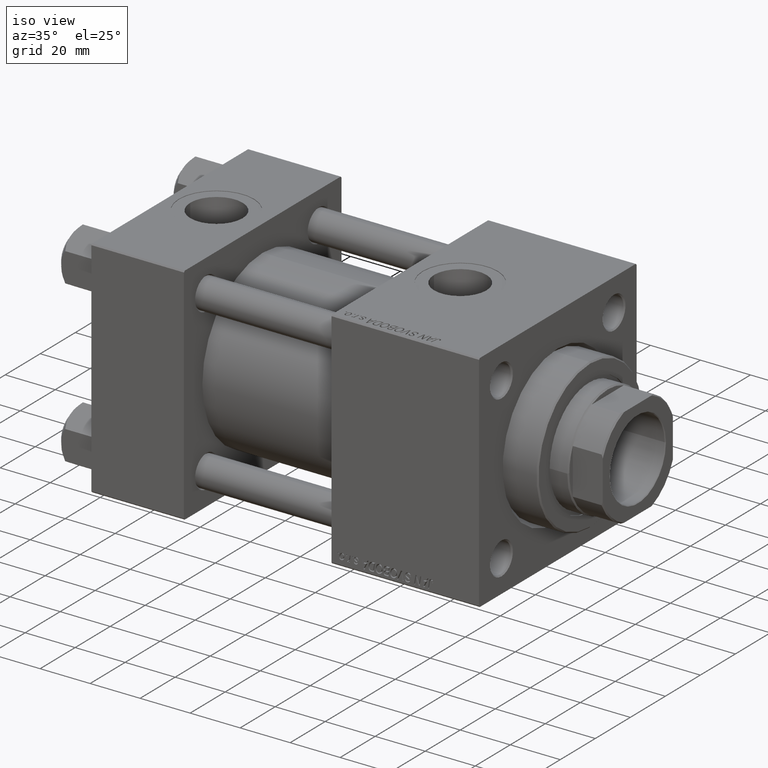
[diagram: clean part render]
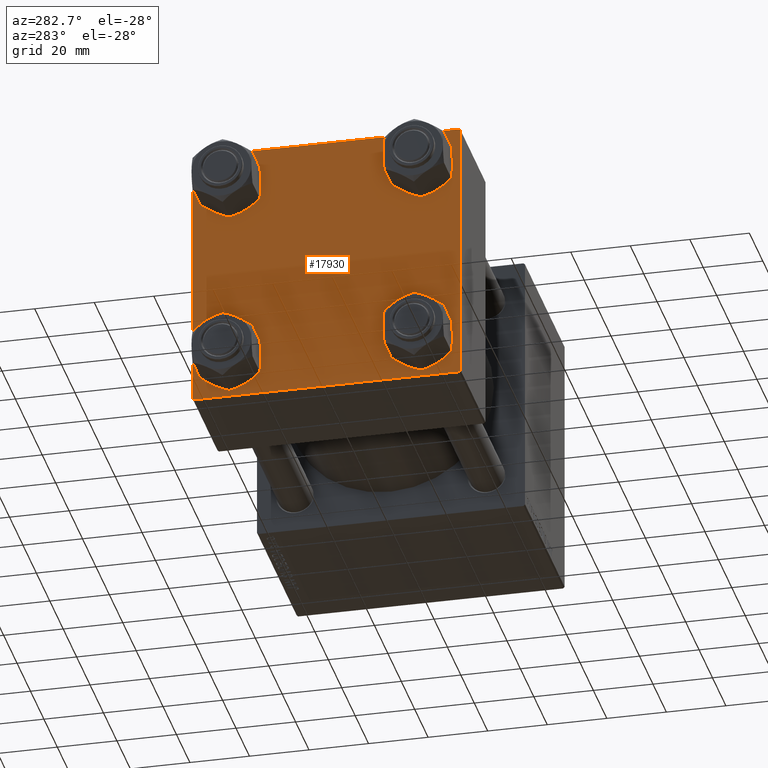
[diagram: tour spotlight — one face highlighted and labeled with its STEP entity id]
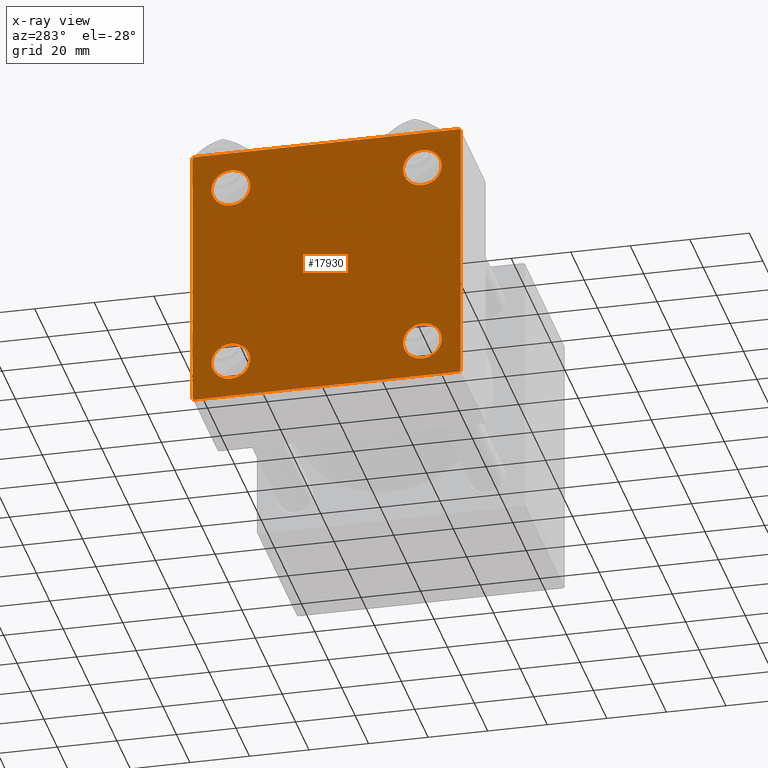
[diagram: x-ray of the same camera — body ghosted, this tour face saturated]
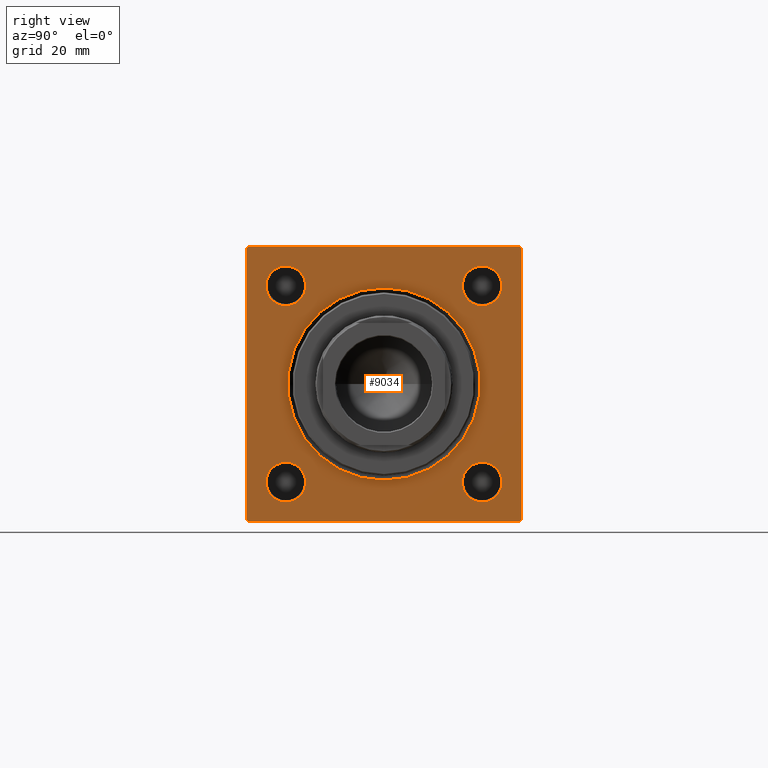
[diagram: tour spotlight — one face highlighted and labeled with its STEP entity id]
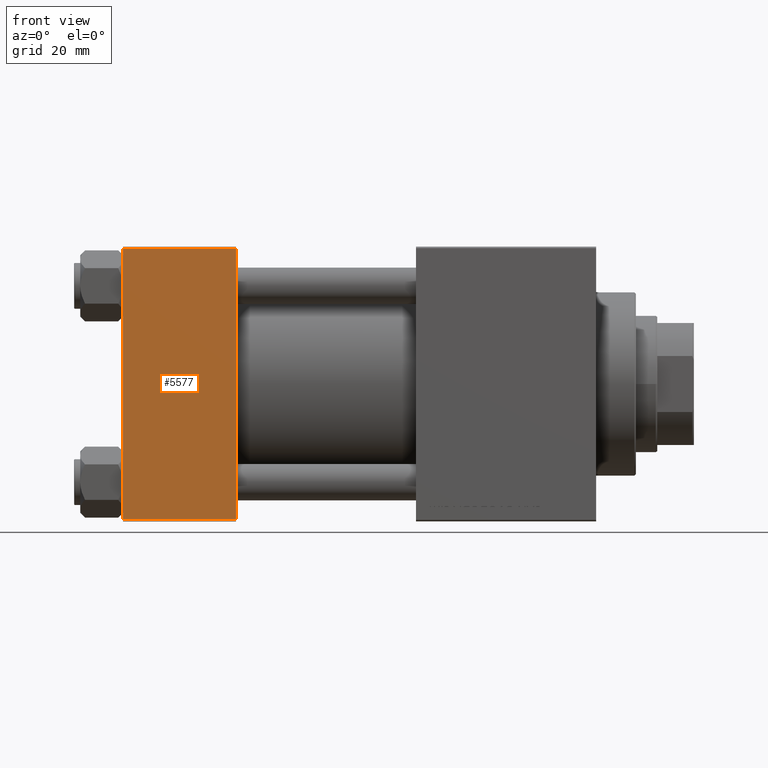
[diagram: tour spotlight — one face highlighted and labeled with its STEP entity id]
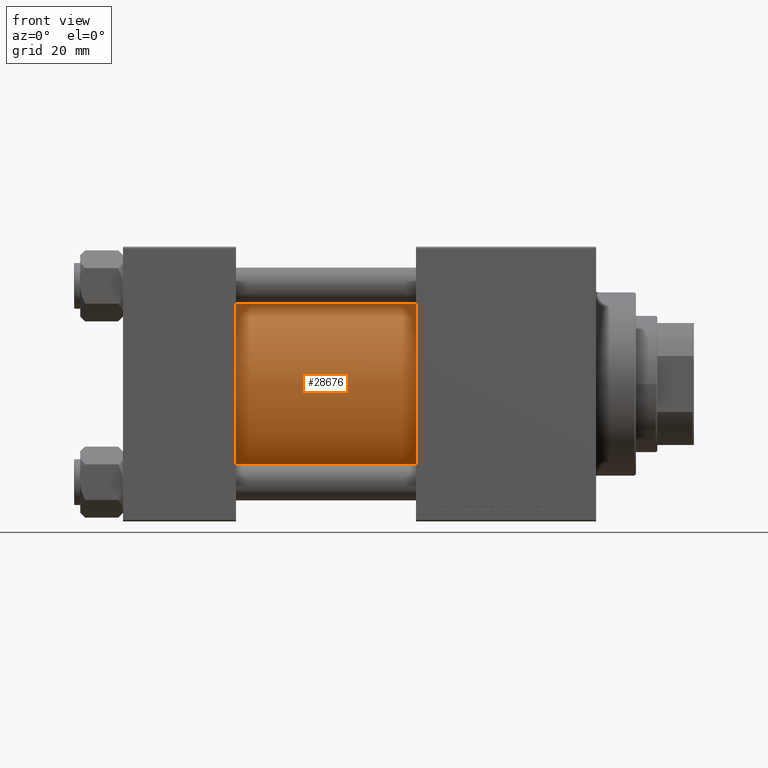
[diagram: tour spotlight — one face highlighted and labeled with its STEP entity id]
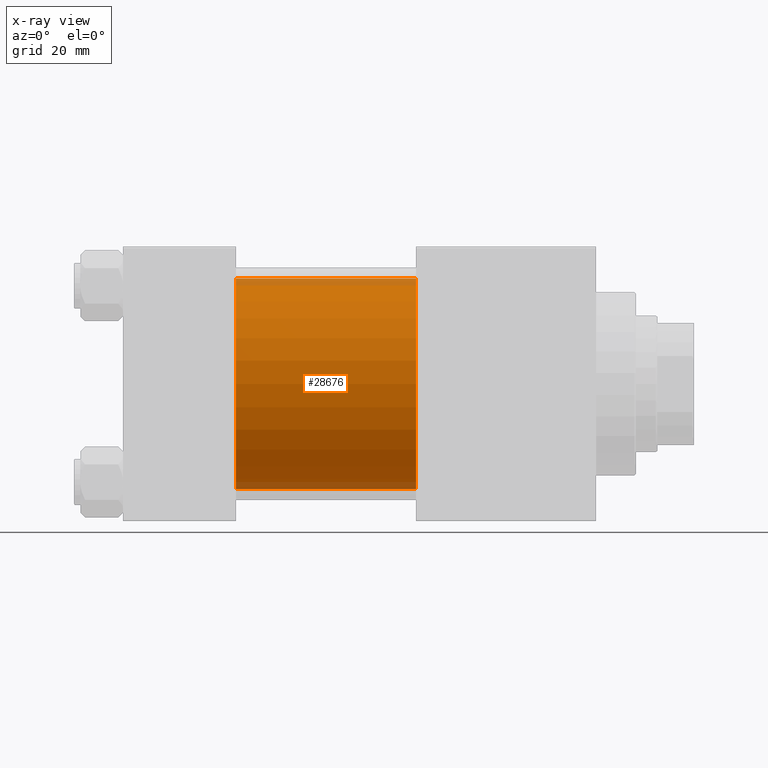
[diagram: x-ray of the same camera — body ghosted, this tour face saturated]
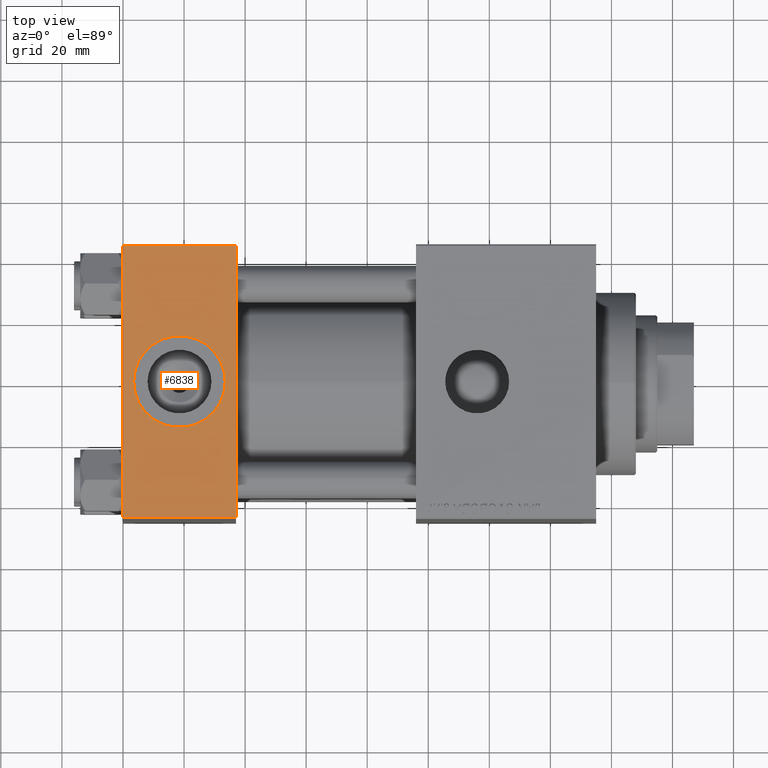
[diagram: tour spotlight — one face highlighted and labeled with its STEP entity id]
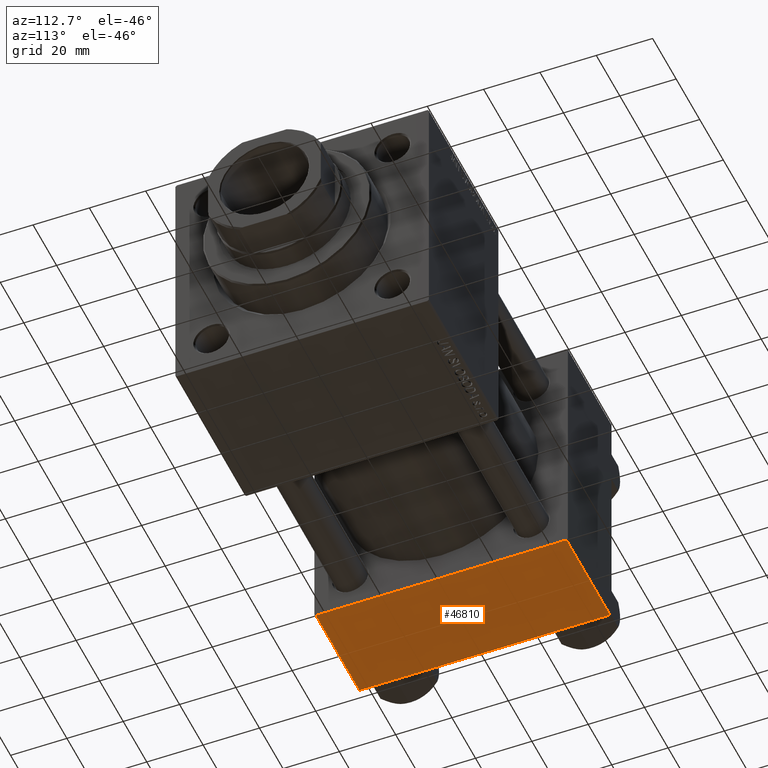
[diagram: tour spotlight — one face highlighted and labeled with its STEP entity id]
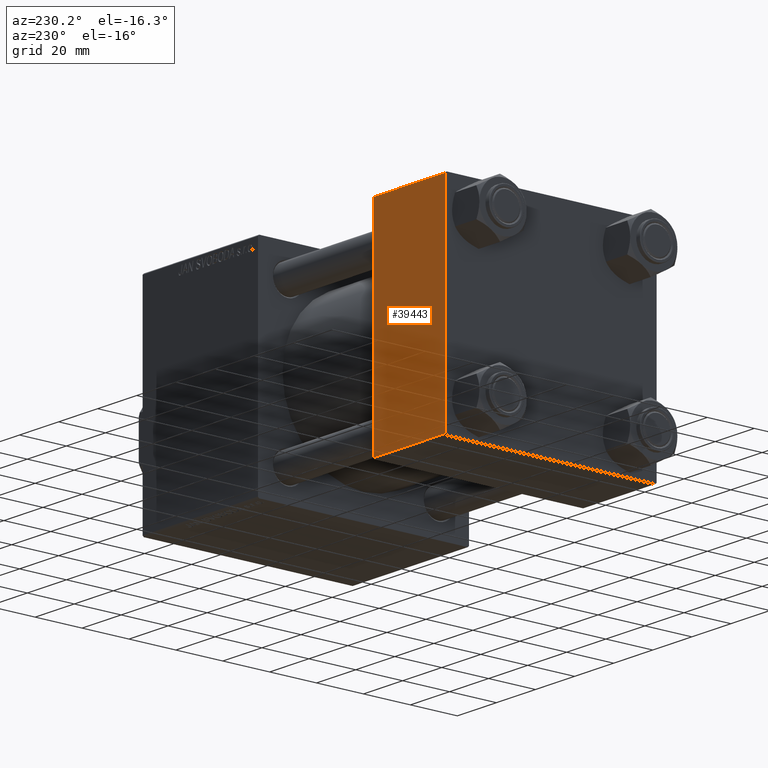
[diagram: tour spotlight — one face highlighted and labeled with its STEP entity id]
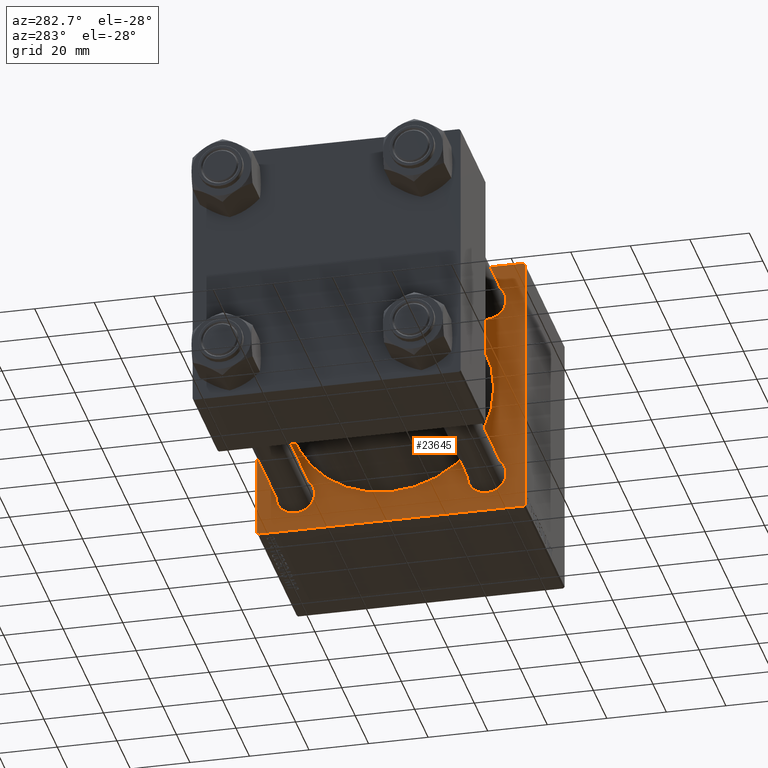
[diagram: tour spotlight — one face highlighted and labeled with its STEP entity id]
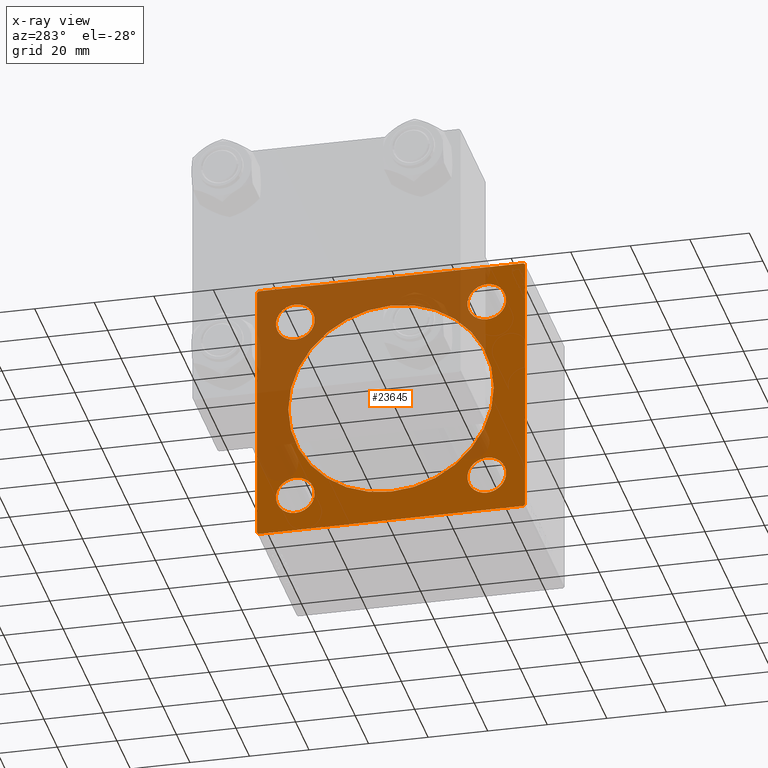
[diagram: x-ray of the same camera — body ghosted, this tour face saturated]
A machine part: a face-by-face anatomy tour. The part has 1145 B-rep faces; the first image is the clean iso view, then the 8 largest visible faces are spotlighted one at a time (largest first), each with its STEP entity span.

Face 1 — auxiliary view, entity #17930. An x-ray twin of the same camera follows (body ghosted, this face saturated) — the face is partly hidden behind the body. In plain terms, the highlighted planar face has unit normal (-1, 0, 0).
Definition (entity closure, byte-faithful):
#626 = DIRECTION ( 'NONE',  ( -0.000000000000000000, 0.7071067811865425767, 0.7071067811865524577 ) ) ;
#1124 = DIRECTION ( 'NONE',  ( 0.000000000000000000, -0.7071067811865474617, 0.7071067811865474617 ) ) ;
#1314 = CIRCLE ( 'NONE', #33722, 6.500000000000019540 ) ;
#1611 = ORIENTED_EDGE ( 'NONE', *, *, #18272, .T. ) ;
#1637 = ORIENTED_EDGE ( 'NONE', *, *, #49095, .T. ) ;
#2316 = FACE_BOUND ( 'NONE', #11095, .T. ) ;
#2383 = VERTEX_POINT ( 'NONE', #34356 ) ;
#2435 = CARTESIAN_POINT ( 'NONE',  ( 0.000000000000000000, -32.14999999999997726, -25.65000000000003411 ) ) ;
#3391 = VECTOR ( 'NONE', #21509, 1000.000000000000000 ) ;
#3831 = CIRCLE ( 'NONE', #33025, 6.499999999999977796 ) ;
#4000 = ORIENTED_EDGE ( 'NONE', *, *, #35711, .T. ) ;
#4042 = CARTESIAN_POINT ( 'NONE',  ( 0.000000000000000000, -32.14999999999997726, 25.64999999999999147 ) ) ;
#4155 = VECTOR ( 'NONE', #1124, 1000.000000000000114 ) ;
#4608 = EDGE_LOOP ( 'NONE', ( #26165, #31488 ) ) ;
#5732 = DIRECTION ( 'NONE',  ( 0.000000000000000000, 0.000000000000000000, 1.000000000000000000 ) ) ;
#5776 = CIRCLE ( 'NONE', #15481, 6.499999999999977796 ) ;
#5778 = DIRECTION ( 'NONE',  ( 1.000000000000000000, -0.000000000000000000, 0.000000000000000000 ) ) ;
#5988 = AXIS2_PLACEMENT_3D ( 'NONE', #40461, #21205, #5732 ) ;
#6298 = CARTESIAN_POINT ( 'NONE',  ( 0.000000000000000000, 44.74999999999998579, -44.74999999999998579 ) ) ;
#6357 = FACE_BOUND ( 'NONE', #9406, .T. ) ;
#6422 = VERTEX_POINT ( 'NONE', #30143 ) ;
#6711 = DIRECTION ( 'NONE',  ( 0.000000000000000000, 0.7071067811865474617, -0.7071067811865474617 ) ) ;
#6900 = ORIENTED_EDGE ( 'NONE', *, *, #46575, .T. ) ;
#7127 = CARTESIAN_POINT ( 'NONE',  ( 0.000000000000000000, 32.14999999999999147, -32.15000000000000568 ) ) ;
#8217 = ORIENTED_EDGE ( 'NONE', *, *, #15136, .T. ) ;
#8400 = DIRECTION ( 'NONE',  ( 0.000000000000000000, 0.000000000000000000, 1.000000000000000000 ) ) ;
#8742 = VERTEX_POINT ( 'NONE', #4042 ) ;
#9345 = CARTESIAN_POINT ( 'NONE',  ( 0.000000000000000000, 44.99999999999998579, 45.00000000000001421 ) ) ;
#9348 = AXIS2_PLACEMENT_3D ( 'NONE', #17656, #32389, #17410 ) ;
#9406 = EDGE_LOOP ( 'NONE', ( #1637, #8217 ) ) ;
#10144 = ORIENTED_EDGE ( 'NONE', *, *, #13451, .F. ) ;
#10519 = LINE ( 'NONE', #48805, #49256 ) ;
#10559 = CARTESIAN_POINT ( 'NONE',  ( 0.000000000000000000, -32.14999999999997726, -38.64999999999999147 ) ) ;
#10696 = DIRECTION ( 'NONE',  ( 1.000000000000000000, -0.000000000000000000, 0.000000000000000000 ) ) ;
#10761 = CARTESIAN_POINT ( 'NONE',  ( 0.000000000000000000, -32.14999999999997726, 38.65000000000003411 ) ) ;
#11075 = CIRCLE ( 'NONE', #32967, 6.499999999999977796 ) ;
#11095 = EDGE_LOOP ( 'NONE', ( #42108, #43535 ) ) ;
#11208 = CARTESIAN_POINT ( 'NONE',  ( 0.000000000000000000, 32.14999999999999147, 25.65000000000002700 ) ) ;
#11675 = CIRCLE ( 'NONE', #5988, 6.499999999999977796 ) ;
#12047 = CARTESIAN_POINT ( 'NONE',  ( -0.000000000000000000, -44.75000000000029843, 44.74999999999967315 ) ) ;
#12125 = EDGE_LOOP ( 'NONE', ( #6900, #1611, #31840, #43096, #24429, #42027, #10144, #18405 ) ) ;
#13451 = EDGE_CURVE ( 'NONE', #31000, #14509, #49746, .T. ) ;
#13652 = VERTEX_POINT ( 'NONE', #34247 ) ;
#13975 = DIRECTION ( 'NONE',  ( -0.000000000000000000, 0.000000000000000000, 1.000000000000000000 ) ) ;
#14509 = VERTEX_POINT ( 'NONE', #39414 ) ;
#14671 = CARTESIAN_POINT ( 'NONE',  ( 0.000000000000000000, 32.14999999999999147, 32.15000000000000568 ) ) ;
#14681 = CIRCLE ( 'NONE', #36565, 6.499999999999977796 ) ;
#14772 = CARTESIAN_POINT ( 'NONE',  ( 0.000000000000000000, 44.99999999999998579, 45.00000000000001421 ) ) ;
#15114 = VERTEX_POINT ( 'NONE', #39720 ) ;
#15136 = EDGE_CURVE ( 'NONE', #26908, #13652, #11675, .T. ) ;
#15481 = AXIS2_PLACEMENT_3D ( 'NONE', #7127, #10696, #25659 ) ;
#16524 = DIRECTION ( 'NONE',  ( 1.000000000000000000, -0.000000000000000000, 0.000000000000000000 ) ) ;
#16638 = VECTOR ( 'NONE', #20754, 1000.000000000000114 ) ;
#16864 = VERTEX_POINT ( 'NONE', #11208 ) ;
#17219 = LINE ( 'NONE', #9345, #3391 ) ;
#17410 = DIRECTION ( 'NONE',  ( 0.000000000000000000, 0.000000000000000000, 1.000000000000000000 ) ) ;
#17656 = CARTESIAN_POINT ( 'NONE',  ( 0.000000000000000000, 32.14999999999999147, 32.15000000000000568 ) ) ;
#17786 = DIRECTION ( 'NONE',  ( -1.000000000000000000, 0.000000000000000000, -0.000000000000000000 ) ) ;
#17930 = ADVANCED_FACE ( 'NONE', ( #37059, #2316, #6357, #41083, #40583 ), #40337, .T. ) ;
#18082 = DIRECTION ( 'NONE',  ( 1.000000000000000000, -0.000000000000000000, 0.000000000000000000 ) ) ;
#18087 = DIRECTION ( 'NONE',  ( 0.000000000000000000, -1.000000000000000000, -1.541976423090495387E-16 ) ) ;
#18272 = EDGE_CURVE ( 'NONE', #22533, #2383, #32951, .T. ) ;
#18405 = ORIENTED_EDGE ( 'NONE', *, *, #34161, .T. ) ;
#18603 = EDGE_CURVE ( 'NONE', #16864, #35974, #36912, .T. ) ;
#20754 = DIRECTION ( 'NONE',  ( -0.000000000000000000, -0.7071067811865474617, -0.7071067811865474617 ) ) ;
#21205 = DIRECTION ( 'NONE',  ( 1.000000000000000000, -0.000000000000000000, 0.000000000000000000 ) ) ;
#21509 = DIRECTION ( 'NONE',  ( 0.000000000000000000, 0.000000000000000000, -1.000000000000000000 ) ) ;
#21822 = CARTESIAN_POINT ( 'NONE',  ( 0.000000000000000000, 0.000000000000000000, 0.000000000000000000 ) ) ;
#21851 = ORIENTED_EDGE ( 'NONE', *, *, #18603, .T. ) ;
#22533 = VERTEX_POINT ( 'NONE', #24608 ) ;
#22919 = VECTOR ( 'NONE', #18087, 1000.000000000000000 ) ;
#23380 = DIRECTION ( 'NONE',  ( 0.000000000000000000, 7.709882115452476934E-17, -1.000000000000000000 ) ) ;
#23691 = EDGE_CURVE ( 'NONE', #8742, #42888, #1314, .T. ) ;
#24429 = ORIENTED_EDGE ( 'NONE', *, *, #27491, .F. ) ;
#24608 = CARTESIAN_POINT ( 'NONE',  ( 0.000000000000000000, 44.99999999999998579, -44.49999999999995737 ) ) ;
#25045 = CARTESIAN_POINT ( 'NONE',  ( 0.000000000000000000, -32.14999999999997726, 32.15000000000001279 ) ) ;
#25659 = DIRECTION ( 'NONE',  ( 0.000000000000000000, 0.000000000000000000, 1.000000000000000000 ) ) ;
#26091 = VECTOR ( 'NONE', #48135, 1000.000000000000000 ) ;
#26097 = EDGE_CURVE ( 'NONE', #36836, #34893, #11075, .T. ) ;
#26165 = ORIENTED_EDGE ( 'NONE', *, *, #34583, .T. ) ;
#26908 = VERTEX_POINT ( 'NONE', #47323 ) ;
#27237 = EDGE_CURVE ( 'NONE', #49708, #14509, #27508, .T. ) ;
#27331 = DIRECTION ( 'NONE',  ( 0.000000000000000000, 0.000000000000000000, 1.000000000000000000 ) ) ;
#27409 = CIRCLE ( 'NONE', #28929, 6.500000000000019540 ) ;
#27491 = EDGE_CURVE ( 'NONE', #49708, #33312, #43146, .T. ) ;
#27508 = LINE ( 'NONE', #12047, #34625 ) ;
#28179 = CARTESIAN_POINT ( 'NONE',  ( 0.000000000000000000, -32.14999999999997726, -32.15000000000001279 ) ) ;
#28378 = CARTESIAN_POINT ( 'NONE',  ( 0.000000000000000000, 44.99999999999998579, -44.99999999999998579 ) ) ;
#28929 = AXIS2_PLACEMENT_3D ( 'NONE', #25045, #5778, #29116 ) ;
#29116 = DIRECTION ( 'NONE',  ( 0.000000000000000000, 0.000000000000000000, 1.000000000000000000 ) ) ;
#29299 = CARTESIAN_POINT ( 'NONE',  ( 0.000000000000000000, -45.00000000000000711, 44.49999999999997158 ) ) ;
#30143 = CARTESIAN_POINT ( 'NONE',  ( 0.000000000000000000, -44.49999999999995737, -45.00000000000000000 ) ) ;
#31000 = VERTEX_POINT ( 'NONE', #44305 ) ;
#31405 = CARTESIAN_POINT ( 'NONE',  ( 0.000000000000000000, 32.14999999999999147, 38.64999999999999147 ) ) ;
#31488 = ORIENTED_EDGE ( 'NONE', *, *, #23691, .T. ) ;
#31840 = ORIENTED_EDGE ( 'NONE', *, *, #46533, .T. ) ;
#32039 = DIRECTION ( 'NONE',  ( 0.000000000000000000, 0.000000000000000000, 1.000000000000000000 ) ) ;
#32389 = DIRECTION ( 'NONE',  ( 1.000000000000000000, -0.000000000000000000, 0.000000000000000000 ) ) ;
#32810 = DIRECTION ( 'NONE',  ( 0.000000000000000000, 0.000000000000000000, 1.000000000000000000 ) ) ;
#32951 = LINE ( 'NONE', #6298, #16638 ) ;
#32967 = AXIS2_PLACEMENT_3D ( 'NONE', #28179, #16524, #8400 ) ;
#33025 = AXIS2_PLACEMENT_3D ( 'NONE', #14671, #42023, #27331 ) ;
#33312 = VERTEX_POINT ( 'NONE', #44489 ) ;
#33722 = AXIS2_PLACEMENT_3D ( 'NONE', #43936, #18082, #32810 ) ;
#33848 = CARTESIAN_POINT ( 'NONE',  ( 0.000000000000000000, -32.14999999999997726, -32.15000000000001279 ) ) ;
#34161 = EDGE_CURVE ( 'NONE', #31000, #15114, #10519, .T. ) ;
#34247 = CARTESIAN_POINT ( 'NONE',  ( 0.000000000000000000, 32.14999999999999147, -25.65000000000002700 ) ) ;
#34356 = CARTESIAN_POINT ( 'NONE',  ( 0.000000000000000000, 44.49999999999998579, -44.99999999999998579 ) ) ;
#34583 = EDGE_CURVE ( 'NONE', #42888, #8742, #27409, .T. ) ;
#34625 = VECTOR ( 'NONE', #626, 1000.000000000000114 ) ;
#34893 = VERTEX_POINT ( 'NONE', #2435 ) ;
#35711 = EDGE_CURVE ( 'NONE', #35974, #16864, #3831, .T. ) ;
#35974 = VERTEX_POINT ( 'NONE', #31405 ) ;
#36492 = LINE ( 'NONE', #28378, #26091 ) ;
#36565 = AXIS2_PLACEMENT_3D ( 'NONE', #33848, #42921, #32039 ) ;
#36836 = VERTEX_POINT ( 'NONE', #10559 ) ;
#36912 = CIRCLE ( 'NONE', #9348, 6.499999999999977796 ) ;
#37059 = FACE_BOUND ( 'NONE', #4608, .T. ) ;
#39414 = CARTESIAN_POINT ( 'NONE',  ( 0.000000000000000000, -44.49999999999995737, 45.00000000000000000 ) ) ;
#39465 = VECTOR ( 'NONE', #23380, 1000.000000000000000 ) ;
#39652 = LINE ( 'NONE', #46755, #4155 ) ;
#39720 = CARTESIAN_POINT ( 'NONE',  ( 0.000000000000000000, 44.99999999999998579, 44.50000000000001421 ) ) ;
#40337 = PLANE ( 'NONE',  #46543 ) ;
#40367 = EDGE_LOOP ( 'NONE', ( #4000, #21851 ) ) ;
#40461 = CARTESIAN_POINT ( 'NONE',  ( 0.000000000000000000, 32.14999999999999147, -32.15000000000000568 ) ) ;
#40583 = FACE_OUTER_BOUND ( 'NONE', #12125, .T. ) ;
#41083 = FACE_BOUND ( 'NONE', #40367, .T. ) ;
#42023 = DIRECTION ( 'NONE',  ( 1.000000000000000000, -0.000000000000000000, 0.000000000000000000 ) ) ;
#42027 = ORIENTED_EDGE ( 'NONE', *, *, #27237, .T. ) ;
#42108 = ORIENTED_EDGE ( 'NONE', *, *, #48767, .T. ) ;
#42888 = VERTEX_POINT ( 'NONE', #10761 ) ;
#42921 = DIRECTION ( 'NONE',  ( 1.000000000000000000, -0.000000000000000000, 0.000000000000000000 ) ) ;
#43096 = ORIENTED_EDGE ( 'NONE', *, *, #45079, .T. ) ;
#43146 = LINE ( 'NONE', #46439, #39465 ) ;
#43535 = ORIENTED_EDGE ( 'NONE', *, *, #26097, .T. ) ;
#43936 = CARTESIAN_POINT ( 'NONE',  ( 0.000000000000000000, -32.14999999999997726, 32.15000000000001279 ) ) ;
#44305 = CARTESIAN_POINT ( 'NONE',  ( 0.000000000000000000, 44.49999999999998579, 45.00000000000001421 ) ) ;
#44489 = CARTESIAN_POINT ( 'NONE',  ( 0.000000000000000000, -45.00000000000000000, -44.49999999999995737 ) ) ;
#45079 = EDGE_CURVE ( 'NONE', #6422, #33312, #39652, .T. ) ;
#46439 = CARTESIAN_POINT ( 'NONE',  ( 0.000000000000000000, -45.00000000000000711, 45.00000000000000000 ) ) ;
#46533 = EDGE_CURVE ( 'NONE', #2383, #6422, #36492, .T. ) ;
#46543 = AXIS2_PLACEMENT_3D ( 'NONE', #21822, #17786, #13975 ) ;
#46575 = EDGE_CURVE ( 'NONE', #15114, #22533, #17219, .T. ) ;
#46755 = CARTESIAN_POINT ( 'NONE',  ( 0.000000000000000000, -44.74999999999998579, -44.74999999999998579 ) ) ;
#47323 = CARTESIAN_POINT ( 'NONE',  ( 0.000000000000000000, 32.14999999999999147, -38.64999999999998437 ) ) ;
#48135 = DIRECTION ( 'NONE',  ( 0.000000000000000000, -1.000000000000000000, -1.541976423090495633E-16 ) ) ;
#48767 = EDGE_CURVE ( 'NONE', #34893, #36836, #14681, .T. ) ;
#48805 = CARTESIAN_POINT ( 'NONE',  ( 0.000000000000000000, 44.74999999999999289, 44.74999999999999289 ) ) ;
#49095 = EDGE_CURVE ( 'NONE', #13652, #26908, #5776, .T. ) ;
#49256 = VECTOR ( 'NONE', #6711, 1000.000000000000114 ) ;
#49708 = VERTEX_POINT ( 'NONE', #29299 ) ;
#49746 = LINE ( 'NONE', #14772, #22919 ) ;

Face 2 — right view, entity #9034. In plain terms, the highlighted planar face has unit normal (-1, 0, 0).
Definition (entity closure, byte-faithful):
#102 = CIRCLE ( 'NONE', #45397, 6.500000000000033751 ) ;
#127 = AXIS2_PLACEMENT_3D ( 'NONE', #37723, #15134, #33939 ) ;
#498 = CARTESIAN_POINT ( 'NONE',  ( 155.0000000000000000, 32.14999999999999147, 32.15000000000000568 ) ) ;
#591 = VECTOR ( 'NONE', #38964, 1000.000000000000000 ) ;
#773 = VERTEX_POINT ( 'NONE', #23505 ) ;
#829 = CIRCLE ( 'NONE', #49392, 6.500000000000033751 ) ;
#1059 = CARTESIAN_POINT ( 'NONE',  ( 155.0000000000000000, -32.14999999999999147, 32.14999999999999147 ) ) ;
#1427 = DIRECTION ( 'NONE',  ( -1.000000000000000000, -0.000000000000000000, -0.000000000000000000 ) ) ;
#1751 = CARTESIAN_POINT ( 'NONE',  ( 155.0000000000000000, 44.49999999999998579, 45.00000000000000000 ) ) ;
#1824 = ORIENTED_EDGE ( 'NONE', *, *, #27008, .T. ) ;
#2075 = DIRECTION ( 'NONE',  ( 0.000000000000000000, 0.000000000000000000, 1.000000000000000000 ) ) ;
#3482 = EDGE_CURVE ( 'NONE', #6531, #9050, #9799, .T. ) ;
#3505 = DIRECTION ( 'NONE',  ( -1.000000000000000000, -0.000000000000000000, -0.000000000000000000 ) ) ;
#3600 = DIRECTION ( 'NONE',  ( 0.000000000000000000, 0.7071067811865524577, -0.7071067811865426878 ) ) ;
#4045 = DIRECTION ( 'NONE',  ( -1.000000000000000000, -0.000000000000000000, -0.000000000000000000 ) ) ;
#4676 = CARTESIAN_POINT ( 'NONE',  ( 155.0000000000000000, -32.15000000000001279, -25.64999999999997016 ) ) ;
#5480 = CARTESIAN_POINT ( 'NONE',  ( 155.0000000000000000, -32.14999999999999147, 38.65000000000002700 ) ) ;
#5787 = FACE_OUTER_BOUND ( 'NONE', #17235, .T. ) ;
#6531 = VERTEX_POINT ( 'NONE', #11097 ) ;
#6740 = VECTOR ( 'NONE', #3600, 1000.000000000000000 ) ;
#7291 = DIRECTION ( 'NONE',  ( 0.000000000000000000, 0.000000000000000000, 1.000000000000000000 ) ) ;
#8152 = DIRECTION ( 'NONE',  ( -1.000000000000000000, -0.000000000000000000, -0.000000000000000000 ) ) ;
#8560 = CARTESIAN_POINT ( 'NONE',  ( 155.0000000000000000, 45.00000000000001421, 44.49999999999997158 ) ) ;
#9034 = ADVANCED_FACE ( 'NONE', ( #28872, #44318, #9594, #25053, #40510, #5787 ), #41753, .F. ) ;
#9050 = VERTEX_POINT ( 'NONE', #34929 ) ;
#9594 = FACE_BOUND ( 'NONE', #45630, .T. ) ;
#9799 = CIRCLE ( 'NONE', #45431, 6.500000000000026645 ) ;
#10069 = CARTESIAN_POINT ( 'NONE',  ( 155.0000000000000000, 44.49999999999998579, 45.00000000000000000 ) ) ;
#10310 = AXIS2_PLACEMENT_3D ( 'NONE', #30152, #3505, #7291 ) ;
#10683 = ORIENTED_EDGE ( 'NONE', *, *, #44240, .T. ) ;
#11097 = CARTESIAN_POINT ( 'NONE',  ( 155.0000000000000000, 32.14999999999999147, 25.64999999999997726 ) ) ;
#11132 = CARTESIAN_POINT ( 'NONE',  ( 155.0000000000000000, -44.49999999999994316, 44.99999999999998579 ) ) ;
#11458 = CARTESIAN_POINT ( 'NONE',  ( 155.0000000000000000, 32.14999999999999147, -32.15000000000000568 ) ) ;
#11568 = CIRCLE ( 'NONE', #16423, 6.500000000000033751 ) ;
#11924 = LINE ( 'NONE', #14965, #48391 ) ;
#12045 = EDGE_CURVE ( 'NONE', #49031, #30255, #11568, .T. ) ;
#12355 = VECTOR ( 'NONE', #32246, 1000.000000000000000 ) ;
#12822 = CARTESIAN_POINT ( 'NONE',  ( 155.0000000000000000, 3.857637417314162689E-15, 31.50000000000000000 ) ) ;
#13162 = LINE ( 'NONE', #1751, #23944 ) ;
#13553 = EDGE_CURVE ( 'NONE', #21831, #22214, #39344, .T. ) ;
#13972 = CIRCLE ( 'NONE', #26916, 6.500000000000033751 ) ;
#14114 = EDGE_LOOP ( 'NONE', ( #28308, #36208 ) ) ;
#14148 = VERTEX_POINT ( 'NONE', #5480 ) ;
#14758 = DIRECTION ( 'NONE',  ( 0.000000000000000000, 0.000000000000000000, 1.000000000000000000 ) ) ;
#14965 = CARTESIAN_POINT ( 'NONE',  ( 155.0000000000000000, 45.00000000000001421, 45.00000000000000000 ) ) ;
#15009 = DIRECTION ( 'NONE',  ( -0.000000000000000000, 0.7071067811865474617, 0.7071067811865474617 ) ) ;
#15134 = DIRECTION ( 'NONE',  ( -1.000000000000000000, 0.000000000000000000, -0.000000000000000000 ) ) ;
#15162 = ORIENTED_EDGE ( 'NONE', *, *, #19054, .T. ) ;
#15288 = CARTESIAN_POINT ( 'NONE',  ( 155.0000000000000000, -45.00000000000000000, 44.49999999999995737 ) ) ;
#15389 = LINE ( 'NONE', #19440, #591 ) ;
#15792 = ORIENTED_EDGE ( 'NONE', *, *, #18335, .T. ) ;
#15902 = CARTESIAN_POINT ( 'NONE',  ( 155.0000000000000000, -32.15000000000001279, -32.15000000000000568 ) ) ;
#16131 = CARTESIAN_POINT ( 'NONE',  ( 155.0000000000000000, -44.49999999999990052, -45.00000000000000000 ) ) ;
#16423 = AXIS2_PLACEMENT_3D ( 'NONE', #22852, #34539, #14758 ) ;
#17223 = DIRECTION ( 'NONE',  ( 0.000000000000000000, -0.7071067811865474617, 0.7071067811865474617 ) ) ;
#17235 = EDGE_LOOP ( 'NONE', ( #1824, #23489, #43633, #10683, #38859, #15792, #37809, #15162 ) ) ;
#17371 = EDGE_LOOP ( 'NONE', ( #18835, #29532 ) ) ;
#17847 = CIRCLE ( 'NONE', #31616, 6.500000000000033751 ) ;
#18259 = CIRCLE ( 'NONE', #44149, 31.50000000000000000 ) ;
#18311 = EDGE_CURVE ( 'NONE', #37140, #46016, #18259, .T. ) ;
#18335 = EDGE_CURVE ( 'NONE', #32742, #32929, #13162, .T. ) ;
#18835 = ORIENTED_EDGE ( 'NONE', *, *, #3482, .T. ) ;
#19054 = EDGE_CURVE ( 'NONE', #25452, #32232, #41901, .T. ) ;
#19440 = CARTESIAN_POINT ( 'NONE',  ( 155.0000000000000000, -45.00000000000000000, 44.99999999999998579 ) ) ;
#19533 = ORIENTED_EDGE ( 'NONE', *, *, #35333, .T. ) ;
#19822 = ORIENTED_EDGE ( 'NONE', *, *, #48579, .T. ) ;
#20273 = EDGE_LOOP ( 'NONE', ( #49053, #21699 ) ) ;
#20917 = CIRCLE ( 'NONE', #25662, 6.500000000000033751 ) ;
#20923 = CIRCLE ( 'NONE', #37123, 31.50000000000000000 ) ;
#21336 = DIRECTION ( 'NONE',  ( -1.000000000000000000, -0.000000000000000000, -0.000000000000000000 ) ) ;
#21699 = ORIENTED_EDGE ( 'NONE', *, *, #18311, .T. ) ;
#21831 = VERTEX_POINT ( 'NONE', #23025 ) ;
#22214 = VERTEX_POINT ( 'NONE', #16131 ) ;
#22573 = ORIENTED_EDGE ( 'NONE', *, *, #44831, .T. ) ;
#22811 = DIRECTION ( 'NONE',  ( 0.000000000000000000, -1.000000000000000000, -1.541976423090495140E-16 ) ) ;
#22852 = CARTESIAN_POINT ( 'NONE',  ( 155.0000000000000000, 32.14999999999999147, -32.15000000000000568 ) ) ;
#23025 = CARTESIAN_POINT ( 'NONE',  ( 155.0000000000000000, -44.99999999999999289, -44.49999999999991473 ) ) ;
#23109 = DIRECTION ( 'NONE',  ( 0.000000000000000000, 0.000000000000000000, 1.000000000000000000 ) ) ;
#23489 = ORIENTED_EDGE ( 'NONE', *, *, #13553, .T. ) ;
#23505 = CARTESIAN_POINT ( 'NONE',  ( 155.0000000000000000, 44.50000000000001421, -45.00000000000000000 ) ) ;
#23841 = CARTESIAN_POINT ( 'NONE',  ( 155.0000000000000000, -32.14999999999999147, 25.64999999999995595 ) ) ;
#23944 = VECTOR ( 'NONE', #17223, 1000.000000000000114 ) ;
#24251 = DIRECTION ( 'NONE',  ( 0.000000000000000000, 0.000000000000000000, 1.000000000000000000 ) ) ;
#24363 = CARTESIAN_POINT ( 'NONE',  ( 155.0000000000000000, 45.00000000000001421, -45.00000000000000000 ) ) ;
#24894 = CIRCLE ( 'NONE', #10310, 6.500000000000026645 ) ;
#25029 = CARTESIAN_POINT ( 'NONE',  ( 155.0000000000000000, 0.000000000000000000, 0.000000000000000000 ) ) ;
#25053 = FACE_BOUND ( 'NONE', #14114, .T. ) ;
#25109 = DIRECTION ( 'NONE',  ( -1.000000000000000000, -0.000000000000000000, -0.000000000000000000 ) ) ;
#25452 = VERTEX_POINT ( 'NONE', #11132 ) ;
#25662 = AXIS2_PLACEMENT_3D ( 'NONE', #36819, #21336, #2075 ) ;
#26916 = AXIS2_PLACEMENT_3D ( 'NONE', #47783, #40920, #44735 ) ;
#27008 = EDGE_CURVE ( 'NONE', #32232, #21831, #15389, .T. ) ;
#27179 = VERTEX_POINT ( 'NONE', #4676 ) ;
#27878 = EDGE_CURVE ( 'NONE', #32929, #25452, #11924, .T. ) ;
#28308 = ORIENTED_EDGE ( 'NONE', *, *, #12045, .T. ) ;
#28382 = DIRECTION ( 'NONE',  ( -1.000000000000000000, -0.000000000000000000, -0.000000000000000000 ) ) ;
#28872 = FACE_BOUND ( 'NONE', #17371, .T. ) ;
#29532 = ORIENTED_EDGE ( 'NONE', *, *, #35737, .T. ) ;
#30152 = CARTESIAN_POINT ( 'NONE',  ( 155.0000000000000000, 32.14999999999999147, 32.15000000000000568 ) ) ;
#30255 = VERTEX_POINT ( 'NONE', #31670 ) ;
#30393 = EDGE_CURVE ( 'NONE', #46016, #37140, #20923, .T. ) ;
#30990 = LINE ( 'NONE', #42617, #38140 ) ;
#31614 = VERTEX_POINT ( 'NONE', #23841 ) ;
#31616 = AXIS2_PLACEMENT_3D ( 'NONE', #11458, #8152, #23109 ) ;
#31670 = CARTESIAN_POINT ( 'NONE',  ( 155.0000000000000000, 32.14999999999999147, -25.64999999999997016 ) ) ;
#31790 = CARTESIAN_POINT ( 'NONE',  ( 155.0000000000000000, 45.00000000000001421, 45.00000000000000000 ) ) ;
#32078 = EDGE_CURVE ( 'NONE', #32742, #44410, #47465, .T. ) ;
#32232 = VERTEX_POINT ( 'NONE', #47715 ) ;
#32246 = DIRECTION ( 'NONE',  ( 0.000000000000000000, -1.000000000000000000, 0.000000000000000000 ) ) ;
#32742 = VERTEX_POINT ( 'NONE', #8560 ) ;
#32929 = VERTEX_POINT ( 'NONE', #10069 ) ;
#33939 = DIRECTION ( 'NONE',  ( -0.000000000000000000, 0.000000000000000000, 1.000000000000000000 ) ) ;
#34033 = CARTESIAN_POINT ( 'NONE',  ( 155.0000000000000000, 32.14999999999999147, -38.65000000000004832 ) ) ;
#34539 = DIRECTION ( 'NONE',  ( -1.000000000000000000, -0.000000000000000000, -0.000000000000000000 ) ) ;
#34929 = CARTESIAN_POINT ( 'NONE',  ( 155.0000000000000000, 32.14999999999999147, 38.65000000000003411 ) ) ;
#35333 = EDGE_CURVE ( 'NONE', #27179, #41771, #20917, .T. ) ;
#35737 = EDGE_CURVE ( 'NONE', #9050, #6531, #24894, .T. ) ;
#35753 = DIRECTION ( 'NONE',  ( 0.000000000000000000, 0.000000000000000000, 1.000000000000000000 ) ) ;
#36208 = ORIENTED_EDGE ( 'NONE', *, *, #42482, .T. ) ;
#36222 = CARTESIAN_POINT ( 'NONE',  ( 155.0000000000000000, -32.15000000000001279, -38.65000000000004832 ) ) ;
#36497 = CARTESIAN_POINT ( 'NONE',  ( 155.0000000000000000, 0.000000000000000000, 0.000000000000000000 ) ) ;
#36605 = EDGE_LOOP ( 'NONE', ( #38723, #19822 ) ) ;
#36721 = DIRECTION ( 'NONE',  ( 0.000000000000000000, 0.000000000000000000, 1.000000000000000000 ) ) ;
#36794 = CARTESIAN_POINT ( 'NONE',  ( 155.0000000000000000, 45.00000000000001421, -44.49999999999997158 ) ) ;
#36797 = DIRECTION ( 'NONE',  ( 0.000000000000000000, 0.000000000000000000, 1.000000000000000000 ) ) ;
#36819 = CARTESIAN_POINT ( 'NONE',  ( 155.0000000000000000, -32.15000000000001279, -32.15000000000000568 ) ) ;
#37123 = AXIS2_PLACEMENT_3D ( 'NONE', #25029, #40486, #36721 ) ;
#37140 = VERTEX_POINT ( 'NONE', #12822 ) ;
#37311 = VECTOR ( 'NONE', #46465, 1000.000000000000000 ) ;
#37723 = CARTESIAN_POINT ( 'NONE',  ( 155.0000000000000000, 0.000000000000000000, 0.000000000000000000 ) ) ;
#37809 = ORIENTED_EDGE ( 'NONE', *, *, #27878, .T. ) ;
#38140 = VECTOR ( 'NONE', #15009, 1000.000000000000114 ) ;
#38723 = ORIENTED_EDGE ( 'NONE', *, *, #42507, .T. ) ;
#38859 = ORIENTED_EDGE ( 'NONE', *, *, #32078, .F. ) ;
#38964 = DIRECTION ( 'NONE',  ( 0.000000000000000000, 7.709882115452478166E-17, -1.000000000000000000 ) ) ;
#39344 = LINE ( 'NONE', #42625, #6740 ) ;
#40486 = DIRECTION ( 'NONE',  ( -1.000000000000000000, -0.000000000000000000, -0.000000000000000000 ) ) ;
#40510 = FACE_BOUND ( 'NONE', #20273, .T. ) ;
#40920 = DIRECTION ( 'NONE',  ( -1.000000000000000000, -0.000000000000000000, -0.000000000000000000 ) ) ;
#41403 = DIRECTION ( 'NONE',  ( -0.000000000000000000, -0.7071067811865474617, -0.7071067811865474617 ) ) ;
#41753 = PLANE ( 'NONE',  #127 ) ;
#41771 = VERTEX_POINT ( 'NONE', #36222 ) ;
#41901 = LINE ( 'NONE', #15288, #47417 ) ;
#42482 = EDGE_CURVE ( 'NONE', #30255, #49031, #17847, .T. ) ;
#42507 = EDGE_CURVE ( 'NONE', #31614, #14148, #829, .T. ) ;
#42617 = CARTESIAN_POINT ( 'NONE',  ( 155.0000000000000000, 45.00000000000001421, -44.50000000000000000 ) ) ;
#42625 = CARTESIAN_POINT ( 'NONE',  ( 155.0000000000000000, -44.49999999999992895, -45.00000000000000000 ) ) ;
#43633 = ORIENTED_EDGE ( 'NONE', *, *, #48235, .F. ) ;
#43825 = DIRECTION ( 'NONE',  ( 0.000000000000000000, 0.000000000000000000, 1.000000000000000000 ) ) ;
#43875 = LINE ( 'NONE', #24363, #12355 ) ;
#44149 = AXIS2_PLACEMENT_3D ( 'NONE', #36497, #28382, #43825 ) ;
#44240 = EDGE_CURVE ( 'NONE', #773, #44410, #30990, .T. ) ;
#44318 = FACE_BOUND ( 'NONE', #36605, .T. ) ;
#44410 = VERTEX_POINT ( 'NONE', #36794 ) ;
#44735 = DIRECTION ( 'NONE',  ( 0.000000000000000000, 0.000000000000000000, 1.000000000000000000 ) ) ;
#44831 = EDGE_CURVE ( 'NONE', #41771, #27179, #102, .T. ) ;
#45397 = AXIS2_PLACEMENT_3D ( 'NONE', #15902, #1427, #24251 ) ;
#45431 = AXIS2_PLACEMENT_3D ( 'NONE', #498, #4045, #35753 ) ;
#45630 = EDGE_LOOP ( 'NONE', ( #22573, #19533 ) ) ;
#46016 = VERTEX_POINT ( 'NONE', #46245 ) ;
#46245 = CARTESIAN_POINT ( 'NONE',  ( 155.0000000000000000, 0.000000000000000000, -31.50000000000000000 ) ) ;
#46465 = DIRECTION ( 'NONE',  ( 0.000000000000000000, 0.000000000000000000, -1.000000000000000000 ) ) ;
#47417 = VECTOR ( 'NONE', #41403, 1000.000000000000114 ) ;
#47465 = LINE ( 'NONE', #31790, #37311 ) ;
#47715 = CARTESIAN_POINT ( 'NONE',  ( 155.0000000000000000, -45.00000000000000000, 44.49999999999995737 ) ) ;
#47783 = CARTESIAN_POINT ( 'NONE',  ( 155.0000000000000000, -32.14999999999999147, 32.14999999999999147 ) ) ;
#48235 = EDGE_CURVE ( 'NONE', #773, #22214, #43875, .T. ) ;
#48391 = VECTOR ( 'NONE', #22811, 1000.000000000000000 ) ;
#48579 = EDGE_CURVE ( 'NONE', #14148, #31614, #13972, .T. ) ;
#49031 = VERTEX_POINT ( 'NONE', #34033 ) ;
#49053 = ORIENTED_EDGE ( 'NONE', *, *, #30393, .T. ) ;
#49392 = AXIS2_PLACEMENT_3D ( 'NONE', #1059, #25109, #36797 ) ;

Face 3 — front view, entity #5577. In plain terms, the highlighted planar face has unit normal (0, 1, 0).
Definition (entity closure, byte-faithful):
#1312 = ORIENTED_EDGE ( 'NONE', *, *, #2986, .T. ) ;
#2986 = EDGE_CURVE ( 'NONE', #33312, #12898, #21437, .T. ) ;
#5577 = ADVANCED_FACE ( 'NONE', ( #28753 ), #45697, .F. ) ;
#8329 = LINE ( 'NONE', #24052, #12131 ) ;
#11389 = VERTEX_POINT ( 'NONE', #23605 ) ;
#12131 = VECTOR ( 'NONE', #43554, 1000.000000000000000 ) ;
#12898 = VERTEX_POINT ( 'NONE', #35586 ) ;
#13333 = CARTESIAN_POINT ( 'NONE',  ( 37.00000000000000000, -45.00000000000000000, -44.49999999999998579 ) ) ;
#14040 = CARTESIAN_POINT ( 'NONE',  ( 37.00000000000000000, -45.00000000000000711, 45.00000000000000000 ) ) ;
#18590 = DIRECTION ( 'NONE',  ( -0.000000000000000000, 1.000000000000000000, 7.709882115452478166E-17 ) ) ;
#21437 = LINE ( 'NONE', #13333, #21935 ) ;
#21935 = VECTOR ( 'NONE', #29314, 1000.000000000000000 ) ;
#22162 = ORIENTED_EDGE ( 'NONE', *, *, #41596, .F. ) ;
#23380 = DIRECTION ( 'NONE',  ( 0.000000000000000000, 7.709882115452476934E-17, -1.000000000000000000 ) ) ;
#23494 = LINE ( 'NONE', #31378, #48283 ) ;
#23605 = CARTESIAN_POINT ( 'NONE',  ( 37.00000000000000000, -45.00000000000000711, 44.49999999999997158 ) ) ;
#24045 = EDGE_CURVE ( 'NONE', #11389, #49708, #23494, .T. ) ;
#24052 = CARTESIAN_POINT ( 'NONE',  ( 37.00000000000000000, -45.00000000000000711, 45.00000000000000000 ) ) ;
#25484 = ORIENTED_EDGE ( 'NONE', *, *, #24045, .T. ) ;
#27491 = EDGE_CURVE ( 'NONE', #49708, #33312, #43146, .T. ) ;
#27646 = AXIS2_PLACEMENT_3D ( 'NONE', #14040, #18590, #49509 ) ;
#28753 = FACE_OUTER_BOUND ( 'NONE', #44530, .T. ) ;
#29299 = CARTESIAN_POINT ( 'NONE',  ( 0.000000000000000000, -45.00000000000000711, 44.49999999999997158 ) ) ;
#29314 = DIRECTION ( 'NONE',  ( 1.000000000000000000, 0.000000000000000000, 0.000000000000000000 ) ) ;
#31378 = CARTESIAN_POINT ( 'NONE',  ( 37.00000000000000000, -45.00000000000000711, 44.49999999999997158 ) ) ;
#33312 = VERTEX_POINT ( 'NONE', #44489 ) ;
#35586 = CARTESIAN_POINT ( 'NONE',  ( 37.00000000000000000, -45.00000000000000000, -44.49999999999995737 ) ) ;
#39465 = VECTOR ( 'NONE', #23380, 1000.000000000000000 ) ;
#40983 = ORIENTED_EDGE ( 'NONE', *, *, #27491, .T. ) ;
#41596 = EDGE_CURVE ( 'NONE', #11389, #12898, #8329, .T. ) ;
#43146 = LINE ( 'NONE', #46439, #39465 ) ;
#43554 = DIRECTION ( 'NONE',  ( 0.000000000000000000, 7.709882115452476934E-17, -1.000000000000000000 ) ) ;
#44489 = CARTESIAN_POINT ( 'NONE',  ( 0.000000000000000000, -45.00000000000000000, -44.49999999999995737 ) ) ;
#44530 = EDGE_LOOP ( 'NONE', ( #40983, #1312, #22162, #25484 ) ) ;
#45697 = PLANE ( 'NONE',  #27646 ) ;
#45795 = DIRECTION ( 'NONE',  ( -1.000000000000000000, 0.000000000000000000, 0.000000000000000000 ) ) ;
#46439 = CARTESIAN_POINT ( 'NONE',  ( 0.000000000000000000, -45.00000000000000711, 45.00000000000000000 ) ) ;
#48283 = VECTOR ( 'NONE', #45795, 1000.000000000000000 ) ;
#49509 = DIRECTION ( 'NONE',  ( 0.000000000000000000, -7.709882115452478166E-17, 1.000000000000000000 ) ) ;
#49708 = VERTEX_POINT ( 'NONE', #29299 ) ;

Face 4 — front view, entity #28676. An x-ray twin of the same camera follows (body ghosted, this face saturated) — the face is partly hidden behind the body. In plain terms, the highlighted cylindrical surface (partial cylindrical patch) has radius 34.5 mm, axis along (-1, -0, -0).
Definition (entity closure, byte-faithful):
#6 = EDGE_CURVE ( 'NONE', #7610, #40793, #1372, .T. ) ;
#1372 = CIRCLE ( 'NONE', #25653, 34.50000000000000000 ) ;
#6094 = CARTESIAN_POINT ( 'NONE',  ( 96.00000000000000000, -2.602085213965210642E-15, 34.50000000000000000 ) ) ;
#7610 = VERTEX_POINT ( 'NONE', #6094 ) ;
#7984 = ORIENTED_EDGE ( 'NONE', *, *, #25994, .F. ) ;
#11388 = CARTESIAN_POINT ( 'NONE',  ( 37.00000000000000000, -2.602085213965210642E-15, 0.000000000000000000 ) ) ;
#11773 = EDGE_CURVE ( 'NONE', #7610, #22178, #28102, .T. ) ;
#12833 = ORIENTED_EDGE ( 'NONE', *, *, #6, .F. ) ;
#12984 = EDGE_CURVE ( 'NONE', #22178, #15756, #16465, .T. ) ;
#14162 = CARTESIAN_POINT ( 'NONE',  ( 96.00000000000000000, -2.602085213965210642E-15, 0.000000000000000000 ) ) ;
#14782 = DIRECTION ( 'NONE',  ( 1.000000000000000000, 0.000000000000000000, 0.000000000000000000 ) ) ;
#15756 = VERTEX_POINT ( 'NONE', #27955 ) ;
#16465 = CIRCLE ( 'NONE', #48039, 34.50000000000000000 ) ;
#18999 = DIRECTION ( 'NONE',  ( 0.000000000000000000, 0.000000000000000000, 1.000000000000000000 ) ) ;
#21628 = CARTESIAN_POINT ( 'NONE',  ( 96.00000000000000000, -2.602085213965210642E-15, 0.000000000000000000 ) ) ;
#22178 = VERTEX_POINT ( 'NONE', #24232 ) ;
#22258 = DIRECTION ( 'NONE',  ( 0.000000000000000000, 0.000000000000000000, 1.000000000000000000 ) ) ;
#22357 = DIRECTION ( 'NONE',  ( -1.000000000000000000, -0.000000000000000000, -0.000000000000000000 ) ) ;
#24232 = CARTESIAN_POINT ( 'NONE',  ( 37.00000000000000000, -2.602085213965210642E-15, 34.50000000000000000 ) ) ;
#24287 = DIRECTION ( 'NONE',  ( -1.000000000000000000, -0.000000000000000000, -0.000000000000000000 ) ) ;
#25653 = AXIS2_PLACEMENT_3D ( 'NONE', #21628, #14782, #41141 ) ;
#25743 = AXIS2_PLACEMENT_3D ( 'NONE', #14162, #29143, #22258 ) ;
#25994 = EDGE_CURVE ( 'NONE', #40793, #15756, #34050, .T. ) ;
#27955 = CARTESIAN_POINT ( 'NONE',  ( 37.00000000000000000, 1.622946243093158675E-15, -34.50000000000000000 ) ) ;
#28102 = LINE ( 'NONE', #43546, #48806 ) ;
#28350 = CARTESIAN_POINT ( 'NONE',  ( 96.00000000000000000, 1.622946243093158675E-15, -34.50000000000000000 ) ) ;
#28676 = ADVANCED_FACE ( 'NONE', ( #29894 ), #37246, .T. ) ;
#29143 = DIRECTION ( 'NONE',  ( -1.000000000000000000, -0.000000000000000000, -0.000000000000000000 ) ) ;
#29894 = FACE_OUTER_BOUND ( 'NONE', #38046, .T. ) ;
#34050 = LINE ( 'NONE', #49741, #37012 ) ;
#37012 = VECTOR ( 'NONE', #22357, 1000.000000000000000 ) ;
#37246 = CYLINDRICAL_SURFACE ( 'NONE', #25743, 34.50000000000000000 ) ;
#38046 = EDGE_LOOP ( 'NONE', ( #7984, #12833, #44033, #43235 ) ) ;
#40793 = VERTEX_POINT ( 'NONE', #28350 ) ;
#41141 = DIRECTION ( 'NONE',  ( 0.000000000000000000, 0.000000000000000000, -1.000000000000000000 ) ) ;
#43235 = ORIENTED_EDGE ( 'NONE', *, *, #12984, .T. ) ;
#43546 = CARTESIAN_POINT ( 'NONE',  ( 96.00000000000000000, -2.602085213965210642E-15, 34.50000000000000000 ) ) ;
#44033 = ORIENTED_EDGE ( 'NONE', *, *, #11773, .T. ) ;
#48039 = AXIS2_PLACEMENT_3D ( 'NONE', #11388, #50171, #18999 ) ;
#48806 = VECTOR ( 'NONE', #24287, 1000.000000000000000 ) ;
#49741 = CARTESIAN_POINT ( 'NONE',  ( 96.00000000000000000, 1.622946243093158675E-15, -34.50000000000000000 ) ) ;
#50171 = DIRECTION ( 'NONE',  ( 1.000000000000000000, -0.000000000000000000, 0.000000000000000000 ) ) ;

Face 5 — top view, entity #6838. In plain terms, the highlighted planar face has unit normal (0, 0, -1).
Definition (entity closure, byte-faithful):
#1885 = LINE ( 'NONE', #43956, #16805 ) ;
#2118 = DIRECTION ( 'NONE',  ( 0.000000000000000000, 0.000000000000000000, 1.000000000000000000 ) ) ;
#2877 = LINE ( 'NONE', #18348, #21511 ) ;
#3144 = EDGE_CURVE ( 'NONE', #32594, #44022, #26421, .T. ) ;
#3380 = AXIS2_PLACEMENT_3D ( 'NONE', #22693, #49818, #31335 ) ;
#3905 = AXIS2_PLACEMENT_3D ( 'NONE', #22264, #38480, #50136 ) ;
#5555 = EDGE_CURVE ( 'NONE', #20563, #31000, #32572, .T. ) ;
#6351 = CARTESIAN_POINT ( 'NONE',  ( 37.00000000000000000, -44.49999999999995737, 45.00000000000000000 ) ) ;
#6838 = ADVANCED_FACE ( 'NONE', ( #27007, #45757 ), #22445, .F. ) ;
#6974 = AXIS2_PLACEMENT_3D ( 'NONE', #21873, #2118, #37111 ) ;
#13451 = EDGE_CURVE ( 'NONE', #31000, #14509, #49746, .T. ) ;
#14509 = VERTEX_POINT ( 'NONE', #39414 ) ;
#14772 = CARTESIAN_POINT ( 'NONE',  ( 0.000000000000000000, 44.99999999999998579, 45.00000000000001421 ) ) ;
#15990 = ORIENTED_EDGE ( 'NONE', *, *, #5555, .T. ) ;
#16085 = ORIENTED_EDGE ( 'NONE', *, *, #3144, .F. ) ;
#16805 = VECTOR ( 'NONE', #40654, 1000.000000000000000 ) ;
#18087 = DIRECTION ( 'NONE',  ( 0.000000000000000000, -1.000000000000000000, -1.541976423090495387E-16 ) ) ;
#18348 = CARTESIAN_POINT ( 'NONE',  ( 37.00000000000000000, 44.99999999999998579, 45.00000000000001421 ) ) ;
#19093 = EDGE_CURVE ( 'NONE', #20563, #45281, #2877, .T. ) ;
#20563 = VERTEX_POINT ( 'NONE', #29908 ) ;
#21140 = CARTESIAN_POINT ( 'NONE',  ( 0.000000000000000000, 44.49999999999998579, 45.00000000000001421 ) ) ;
#21157 = VECTOR ( 'NONE', #48011, 1000.000000000000000 ) ;
#21511 = VECTOR ( 'NONE', #22890, 1000.000000000000000 ) ;
#21873 = CARTESIAN_POINT ( 'NONE',  ( 18.50000000000000000, -8.673617379884038628E-15, 45.00000000000000711 ) ) ;
#22264 = CARTESIAN_POINT ( 'NONE',  ( 18.50000000000000000, -8.673617379884038628E-15, 45.00000000000000711 ) ) ;
#22445 = PLANE ( 'NONE',  #3380 ) ;
#22693 = CARTESIAN_POINT ( 'NONE',  ( 37.00000000000000000, 44.99999999999998579, 45.00000000000001421 ) ) ;
#22890 = DIRECTION ( 'NONE',  ( 0.000000000000000000, -1.000000000000000000, -1.541976423090495387E-16 ) ) ;
#22919 = VECTOR ( 'NONE', #18087, 1000.000000000000000 ) ;
#23074 = ORIENTED_EDGE ( 'NONE', *, *, #28155, .T. ) ;
#26421 = CIRCLE ( 'NONE', #6974, 15.00000000000000355 ) ;
#27007 = FACE_BOUND ( 'NONE', #43187, .T. ) ;
#28155 = EDGE_CURVE ( 'NONE', #14509, #45281, #1885, .T. ) ;
#29908 = CARTESIAN_POINT ( 'NONE',  ( 37.00000000000000000, 44.49999999999998579, 45.00000000000001421 ) ) ;
#30622 = CIRCLE ( 'NONE', #3905, 15.00000000000000355 ) ;
#31000 = VERTEX_POINT ( 'NONE', #44305 ) ;
#31335 = DIRECTION ( 'NONE',  ( 0.000000000000000000, 1.000000000000000000, 1.541976423090495633E-16 ) ) ;
#32552 = CARTESIAN_POINT ( 'NONE',  ( 33.50000000000000000, -8.673617379884038628E-15, 45.00000000000000711 ) ) ;
#32572 = LINE ( 'NONE', #21140, #21157 ) ;
#32594 = VERTEX_POINT ( 'NONE', #48660 ) ;
#37111 = DIRECTION ( 'NONE',  ( 1.000000000000000000, 0.000000000000000000, 0.000000000000000000 ) ) ;
#37617 = EDGE_CURVE ( 'NONE', #44022, #32594, #30622, .T. ) ;
#38480 = DIRECTION ( 'NONE',  ( 0.000000000000000000, 0.000000000000000000, 1.000000000000000000 ) ) ;
#38570 = ORIENTED_EDGE ( 'NONE', *, *, #37617, .F. ) ;
#39414 = CARTESIAN_POINT ( 'NONE',  ( 0.000000000000000000, -44.49999999999995737, 45.00000000000000000 ) ) ;
#40654 = DIRECTION ( 'NONE',  ( 1.000000000000000000, 0.000000000000000000, 0.000000000000000000 ) ) ;
#41040 = ORIENTED_EDGE ( 'NONE', *, *, #19093, .F. ) ;
#43187 = EDGE_LOOP ( 'NONE', ( #38570, #16085 ) ) ;
#43956 = CARTESIAN_POINT ( 'NONE',  ( 37.00000000000000000, -44.49999999999998579, 45.00000000000000000 ) ) ;
#44022 = VERTEX_POINT ( 'NONE', #32552 ) ;
#44305 = CARTESIAN_POINT ( 'NONE',  ( 0.000000000000000000, 44.49999999999998579, 45.00000000000001421 ) ) ;
#45281 = VERTEX_POINT ( 'NONE', #6351 ) ;
#45757 = FACE_OUTER_BOUND ( 'NONE', #47047, .T. ) ;
#47047 = EDGE_LOOP ( 'NONE', ( #48148, #23074, #41040, #15990 ) ) ;
#48011 = DIRECTION ( 'NONE',  ( -1.000000000000000000, 0.000000000000000000, 0.000000000000000000 ) ) ;
#48148 = ORIENTED_EDGE ( 'NONE', *, *, #13451, .T. ) ;
#48660 = CARTESIAN_POINT ( 'NONE',  ( 3.499999999999997780, -6.836647181163008250E-15, 45.00000000000000711 ) ) ;
#49746 = LINE ( 'NONE', #14772, #22919 ) ;
#49818 = DIRECTION ( 'NONE',  ( 0.000000000000000000, 1.541976423090495633E-16, -1.000000000000000000 ) ) ;
#50136 = DIRECTION ( 'NONE',  ( 1.000000000000000000, 0.000000000000000000, 0.000000000000000000 ) ) ;

Face 6 — auxiliary view, entity #46810. In plain terms, the highlighted planar face has unit normal (0, 0, -1).
Definition (entity closure, byte-faithful):
#2127 = DIRECTION ( 'NONE',  ( -1.000000000000000000, 0.000000000000000000, 0.000000000000000000 ) ) ;
#2383 = VERTEX_POINT ( 'NONE', #34356 ) ;
#2665 = LINE ( 'NONE', #30054, #13787 ) ;
#3562 = EDGE_LOOP ( 'NONE', ( #26757, #37184, #45490, #38613 ) ) ;
#4849 = EDGE_CURVE ( 'NONE', #2383, #33358, #8962, .T. ) ;
#5439 = EDGE_CURVE ( 'NONE', #19146, #6422, #24444, .T. ) ;
#6422 = VERTEX_POINT ( 'NONE', #30143 ) ;
#8962 = LINE ( 'NONE', #24437, #23625 ) ;
#13787 = VECTOR ( 'NONE', #18140, 1000.000000000000000 ) ;
#14651 = CARTESIAN_POINT ( 'NONE',  ( 37.00000000000000000, 44.99999999999998579, -44.99999999999998579 ) ) ;
#18140 = DIRECTION ( 'NONE',  ( 0.000000000000000000, -1.000000000000000000, -1.541976423090495633E-16 ) ) ;
#19146 = VERTEX_POINT ( 'NONE', #45954 ) ;
#22743 = FACE_OUTER_BOUND ( 'NONE', #3562, .T. ) ;
#23625 = VECTOR ( 'NONE', #41388, 1000.000000000000000 ) ;
#24437 = CARTESIAN_POINT ( 'NONE',  ( 37.00000000000000000, 44.49999999999998579, -44.99999999999998579 ) ) ;
#24444 = LINE ( 'NONE', #40653, #32541 ) ;
#26056 = AXIS2_PLACEMENT_3D ( 'NONE', #14651, #30133, #45569 ) ;
#26091 = VECTOR ( 'NONE', #48135, 1000.000000000000000 ) ;
#26757 = ORIENTED_EDGE ( 'NONE', *, *, #46533, .F. ) ;
#28378 = CARTESIAN_POINT ( 'NONE',  ( 0.000000000000000000, 44.99999999999998579, -44.99999999999998579 ) ) ;
#30054 = CARTESIAN_POINT ( 'NONE',  ( 37.00000000000000000, 44.99999999999998579, -44.99999999999998579 ) ) ;
#30133 = DIRECTION ( 'NONE',  ( 0.000000000000000000, 1.541976423090495880E-16, -1.000000000000000000 ) ) ;
#30143 = CARTESIAN_POINT ( 'NONE',  ( 0.000000000000000000, -44.49999999999995737, -45.00000000000000000 ) ) ;
#32541 = VECTOR ( 'NONE', #2127, 1000.000000000000000 ) ;
#33358 = VERTEX_POINT ( 'NONE', #35542 ) ;
#34356 = CARTESIAN_POINT ( 'NONE',  ( 0.000000000000000000, 44.49999999999998579, -44.99999999999998579 ) ) ;
#35542 = CARTESIAN_POINT ( 'NONE',  ( 37.00000000000000000, 44.49999999999998579, -44.99999999999998579 ) ) ;
#36492 = LINE ( 'NONE', #28378, #26091 ) ;
#37184 = ORIENTED_EDGE ( 'NONE', *, *, #4849, .T. ) ;
#38613 = ORIENTED_EDGE ( 'NONE', *, *, #5439, .T. ) ;
#40653 = CARTESIAN_POINT ( 'NONE',  ( 0.000000000000000000, -44.49999999999998579, -45.00000000000000000 ) ) ;
#41388 = DIRECTION ( 'NONE',  ( 1.000000000000000000, 0.000000000000000000, 0.000000000000000000 ) ) ;
#42116 = EDGE_CURVE ( 'NONE', #33358, #19146, #2665, .T. ) ;
#45318 = PLANE ( 'NONE',  #26056 ) ;
#45490 = ORIENTED_EDGE ( 'NONE', *, *, #42116, .T. ) ;
#45569 = DIRECTION ( 'NONE',  ( 0.000000000000000000, 1.000000000000000000, 1.541976423090495880E-16 ) ) ;
#45954 = CARTESIAN_POINT ( 'NONE',  ( 37.00000000000000000, -44.49999999999995737, -45.00000000000000000 ) ) ;
#46533 = EDGE_CURVE ( 'NONE', #2383, #6422, #36492, .T. ) ;
#46810 = ADVANCED_FACE ( 'NONE', ( #22743 ), #45318, .T. ) ;
#48135 = DIRECTION ( 'NONE',  ( 0.000000000000000000, -1.000000000000000000, -1.541976423090495633E-16 ) ) ;

Face 7 — auxiliary view, entity #39443. In plain terms, the highlighted planar face has unit normal (0, 1, 0).
Definition (entity closure, byte-faithful):
#1728 = CARTESIAN_POINT ( 'NONE',  ( 37.00000000000000000, 44.99999999999998579, -44.49999999999998579 ) ) ;
#3391 = VECTOR ( 'NONE', #21509, 1000.000000000000000 ) ;
#4787 = VECTOR ( 'NONE', #28856, 1000.000000000000000 ) ;
#6377 = FACE_OUTER_BOUND ( 'NONE', #22916, .T. ) ;
#6542 = LINE ( 'NONE', #22014, #44604 ) ;
#9345 = CARTESIAN_POINT ( 'NONE',  ( 0.000000000000000000, 44.99999999999998579, 45.00000000000001421 ) ) ;
#9709 = ORIENTED_EDGE ( 'NONE', *, *, #30973, .T. ) ;
#10441 = LINE ( 'NONE', #29966, #37964 ) ;
#11432 = DIRECTION ( 'NONE',  ( 1.000000000000000000, 0.000000000000000000, 0.000000000000000000 ) ) ;
#14493 = DIRECTION ( 'NONE',  ( 0.000000000000000000, -0.000000000000000000, 1.000000000000000000 ) ) ;
#15090 = CARTESIAN_POINT ( 'NONE',  ( 37.00000000000000000, 44.99999999999998579, 44.50000000000001421 ) ) ;
#15114 = VERTEX_POINT ( 'NONE', #39720 ) ;
#16113 = AXIS2_PLACEMENT_3D ( 'NONE', #49469, #41353, #14493 ) ;
#17219 = LINE ( 'NONE', #9345, #3391 ) ;
#17944 = LINE ( 'NONE', #1728, #4787 ) ;
#18219 = DIRECTION ( 'NONE',  ( 0.000000000000000000, 0.000000000000000000, -1.000000000000000000 ) ) ;
#19863 = CARTESIAN_POINT ( 'NONE',  ( 37.00000000000000000, 44.99999999999998579, -44.49999999999995737 ) ) ;
#21509 = DIRECTION ( 'NONE',  ( 0.000000000000000000, 0.000000000000000000, -1.000000000000000000 ) ) ;
#22014 = CARTESIAN_POINT ( 'NONE',  ( 37.00000000000000000, 44.99999999999998579, 45.00000000000001421 ) ) ;
#22533 = VERTEX_POINT ( 'NONE', #24608 ) ;
#22916 = EDGE_LOOP ( 'NONE', ( #44426, #9709, #26274, #48933 ) ) ;
#24608 = CARTESIAN_POINT ( 'NONE',  ( 0.000000000000000000, 44.99999999999998579, -44.49999999999995737 ) ) ;
#26274 = ORIENTED_EDGE ( 'NONE', *, *, #46575, .F. ) ;
#28856 = DIRECTION ( 'NONE',  ( -1.000000000000000000, 0.000000000000000000, 0.000000000000000000 ) ) ;
#29966 = CARTESIAN_POINT ( 'NONE',  ( 37.00000000000000000, 44.99999999999998579, 44.50000000000001421 ) ) ;
#30973 = EDGE_CURVE ( 'NONE', #42990, #22533, #17944, .T. ) ;
#35019 = VERTEX_POINT ( 'NONE', #15090 ) ;
#37964 = VECTOR ( 'NONE', #11432, 1000.000000000000000 ) ;
#38060 = PLANE ( 'NONE',  #16113 ) ;
#39438 = EDGE_CURVE ( 'NONE', #15114, #35019, #10441, .T. ) ;
#39443 = ADVANCED_FACE ( 'NONE', ( #6377 ), #38060, .T. ) ;
#39720 = CARTESIAN_POINT ( 'NONE',  ( 0.000000000000000000, 44.99999999999998579, 44.50000000000001421 ) ) ;
#41353 = DIRECTION ( 'NONE',  ( -0.000000000000000000, 1.000000000000000000, 0.000000000000000000 ) ) ;
#42990 = VERTEX_POINT ( 'NONE', #19863 ) ;
#44426 = ORIENTED_EDGE ( 'NONE', *, *, #47665, .T. ) ;
#44604 = VECTOR ( 'NONE', #18219, 1000.000000000000000 ) ;
#46575 = EDGE_CURVE ( 'NONE', #15114, #22533, #17219, .T. ) ;
#47665 = EDGE_CURVE ( 'NONE', #35019, #42990, #6542, .T. ) ;
#48933 = ORIENTED_EDGE ( 'NONE', *, *, #39438, .T. ) ;
#49469 = CARTESIAN_POINT ( 'NONE',  ( 37.00000000000000000, 44.99999999999998579, 45.00000000000001421 ) ) ;

Face 8 — auxiliary view, entity #23645. An x-ray twin of the same camera follows (body ghosted, this face saturated) — the face is partly hidden behind the body. In plain terms, the highlighted planar face has unit normal (-1, 0, 0).
Definition (entity closure, byte-faithful):
#6 = EDGE_CURVE ( 'NONE', #7610, #40793, #1372, .T. ) ;
#467 = DIRECTION ( 'NONE',  ( 0.000000000000000000, 0.000000000000000000, 1.000000000000000000 ) ) ;
#620 = CARTESIAN_POINT ( 'NONE',  ( 96.00000000000000000, 32.14999999999999147, -25.64999999999999858 ) ) ;
#1244 = VECTOR ( 'NONE', #8290, 1000.000000000000000 ) ;
#1337 = VERTEX_POINT ( 'NONE', #4060 ) ;
#1372 = CIRCLE ( 'NONE', #25653, 34.50000000000000000 ) ;
#1543 = EDGE_CURVE ( 'NONE', #13025, #30026, #27323, .T. ) ;
#1621 = VERTEX_POINT ( 'NONE', #620 ) ;
#1752 = DIRECTION ( 'NONE',  ( 0.000000000000000000, 0.000000000000000000, -1.000000000000000000 ) ) ;
#1825 = ORIENTED_EDGE ( 'NONE', *, *, #4864, .T. ) ;
#2402 = ORIENTED_EDGE ( 'NONE', *, *, #27069, .T. ) ;
#2713 = ORIENTED_EDGE ( 'NONE', *, *, #4650, .T. ) ;
#2962 = DIRECTION ( 'NONE',  ( 0.000000000000000000, 0.000000000000000000, 1.000000000000000000 ) ) ;
#3368 = EDGE_CURVE ( 'NONE', #26021, #16471, #49692, .T. ) ;
#3665 = AXIS2_PLACEMENT_3D ( 'NONE', #38782, #27124, #32196 ) ;
#3764 = CARTESIAN_POINT ( 'NONE',  ( 96.00000000000000000, 32.14999999999999147, 38.65000000000001279 ) ) ;
#4060 = CARTESIAN_POINT ( 'NONE',  ( 96.00000000000000000, -32.14999999999997726, 25.65000000000000213 ) ) ;
#4395 = ORIENTED_EDGE ( 'NONE', *, *, #6466, .T. ) ;
#4650 = EDGE_CURVE ( 'NONE', #23397, #1621, #5768, .T. ) ;
#4864 = EDGE_CURVE ( 'NONE', #27535, #10146, #7155, .T. ) ;
#5055 = LINE ( 'NONE', #8848, #14890 ) ;
#5457 = AXIS2_PLACEMENT_3D ( 'NONE', #11869, #22756, #30634 ) ;
#5570 = LINE ( 'NONE', #11370, #34755 ) ;
#5768 = CIRCLE ( 'NONE', #45466, 6.500000000000005329 ) ;
#5956 = AXIS2_PLACEMENT_3D ( 'NONE', #38712, #11848, #49864 ) ;
#6094 = CARTESIAN_POINT ( 'NONE',  ( 96.00000000000000000, -2.602085213965210642E-15, 34.50000000000000000 ) ) ;
#6466 = EDGE_CURVE ( 'NONE', #30026, #13025, #30944, .T. ) ;
#7155 = LINE ( 'NONE', #10473, #38165 ) ;
#7610 = VERTEX_POINT ( 'NONE', #6094 ) ;
#8033 = LINE ( 'NONE', #35189, #1244 ) ;
#8065 = CARTESIAN_POINT ( 'NONE',  ( 96.00000000000000000, -32.14999999999997726, 32.15000000000001279 ) ) ;
#8290 = DIRECTION ( 'NONE',  ( 0.000000000000000000, 7.709882115452478166E-17, -1.000000000000000000 ) ) ;
#8848 = CARTESIAN_POINT ( 'NONE',  ( 96.00000000000000000, 45.00000000000001421, 45.00000000000000000 ) ) ;
#8998 = CIRCLE ( 'NONE', #11423, 34.50000000000000000 ) ;
#9417 = VECTOR ( 'NONE', #41849, 1000.000000000000114 ) ;
#9486 = VECTOR ( 'NONE', #14585, 1000.000000000000000 ) ;
#9664 = DIRECTION ( 'NONE',  ( 0.000000000000000000, -1.000000000000000000, 0.000000000000000000 ) ) ;
#9749 = VERTEX_POINT ( 'NONE', #40030 ) ;
#10146 = VERTEX_POINT ( 'NONE', #15828 ) ;
#10473 = CARTESIAN_POINT ( 'NONE',  ( 96.00000000000000000, 44.75000000000000000, -44.75000000000000000 ) ) ;
#11370 = CARTESIAN_POINT ( 'NONE',  ( 96.00000000000000000, 44.74999999999998579, 44.74999999999998579 ) ) ;
#11423 = AXIS2_PLACEMENT_3D ( 'NONE', #25165, #36106, #48241 ) ;
#11609 = VERTEX_POINT ( 'NONE', #3764 ) ;
#11632 = DIRECTION ( 'NONE',  ( 1.000000000000000000, 0.000000000000000000, 0.000000000000000000 ) ) ;
#11848 = DIRECTION ( 'NONE',  ( 1.000000000000000000, 0.000000000000000000, 0.000000000000000000 ) ) ;
#11869 = CARTESIAN_POINT ( 'NONE',  ( 96.00000000000000000, -32.14999999999997726, -32.15000000000001279 ) ) ;
#12290 = FACE_BOUND ( 'NONE', #40678, .T. ) ;
#12389 = ORIENTED_EDGE ( 'NONE', *, *, #44059, .T. ) ;
#12499 = ORIENTED_EDGE ( 'NONE', *, *, #18102, .T. ) ;
#13025 = VERTEX_POINT ( 'NONE', #36230 ) ;
#14046 = EDGE_CURVE ( 'NONE', #11609, #39174, #16496, .T. ) ;
#14416 = DIRECTION ( 'NONE',  ( 0.000000000000000000, 0.000000000000000000, 1.000000000000000000 ) ) ;
#14496 = LINE ( 'NONE', #29969, #9417 ) ;
#14582 = CIRCLE ( 'NONE', #27544, 6.500000000000005329 ) ;
#14585 = DIRECTION ( 'NONE',  ( 0.000000000000000000, -0.7071067811865524577, 0.7071067811865426878 ) ) ;
#14782 = DIRECTION ( 'NONE',  ( 1.000000000000000000, 0.000000000000000000, 0.000000000000000000 ) ) ;
#14788 = EDGE_CURVE ( 'NONE', #26749, #27535, #5055, .T. ) ;
#14890 = VECTOR ( 'NONE', #1752, 1000.000000000000000 ) ;
#15056 = DIRECTION ( 'NONE',  ( 0.000000000000000000, 0.000000000000000000, 1.000000000000000000 ) ) ;
#15270 = CARTESIAN_POINT ( 'NONE',  ( 96.00000000000000000, 45.00000000000001421, -44.49999999999997158 ) ) ;
#15614 = ORIENTED_EDGE ( 'NONE', *, *, #3368, .F. ) ;
#15828 = CARTESIAN_POINT ( 'NONE',  ( 96.00000000000000000, 44.50000000000001421, -45.00000000000000000 ) ) ;
#16335 = FACE_BOUND ( 'NONE', #43596, .T. ) ;
#16471 = VERTEX_POINT ( 'NONE', #29313 ) ;
#16496 = CIRCLE ( 'NONE', #5956, 6.499999999999999112 ) ;
#18102 = EDGE_CURVE ( 'NONE', #1621, #23397, #45770, .T. ) ;
#18561 = EDGE_CURVE ( 'NONE', #28285, #36338, #8033, .T. ) ;
#19225 = DIRECTION ( 'NONE',  ( 0.000000000000000000, 0.7071067811865474617, -0.7071067811865474617 ) ) ;
#19585 = ORIENTED_EDGE ( 'NONE', *, *, #31076, .T. ) ;
#20042 = CARTESIAN_POINT ( 'NONE',  ( 96.00000000000000000, -32.14999999999997726, -38.65000000000001990 ) ) ;
#20405 = VERTEX_POINT ( 'NONE', #38808 ) ;
#21628 = CARTESIAN_POINT ( 'NONE',  ( 96.00000000000000000, -2.602085213965210642E-15, 0.000000000000000000 ) ) ;
#22370 = DIRECTION ( 'NONE',  ( -0.000000000000000000, -0.7071067811865474617, -0.7071067811865474617 ) ) ;
#22756 = DIRECTION ( 'NONE',  ( 1.000000000000000000, 0.000000000000000000, 0.000000000000000000 ) ) ;
#23179 = DIRECTION ( 'NONE',  ( 1.000000000000000000, 0.000000000000000000, 0.000000000000000000 ) ) ;
#23397 = VERTEX_POINT ( 'NONE', #31055 ) ;
#23645 = ADVANCED_FACE ( 'NONE', ( #27496, #46995, #12290, #27750, #16335, #43437 ), #33061, .T. ) ;
#23942 = CARTESIAN_POINT ( 'NONE',  ( 96.00000000000000000, 32.14999999999999147, -32.15000000000000568 ) ) ;
#24648 = EDGE_CURVE ( 'NONE', #28285, #16471, #14496, .T. ) ;
#25165 = CARTESIAN_POINT ( 'NONE',  ( 96.00000000000000000, -2.602085213965210642E-15, 0.000000000000000000 ) ) ;
#25653 = AXIS2_PLACEMENT_3D ( 'NONE', #21628, #14782, #41141 ) ;
#25831 = CARTESIAN_POINT ( 'NONE',  ( 96.00000000000000000, -32.14999999999997726, -32.15000000000001279 ) ) ;
#26021 = VERTEX_POINT ( 'NONE', #41375 ) ;
#26749 = VERTEX_POINT ( 'NONE', #42252 ) ;
#27069 = EDGE_CURVE ( 'NONE', #20405, #36338, #33878, .T. ) ;
#27124 = DIRECTION ( 'NONE',  ( 1.000000000000000000, 0.000000000000000000, 0.000000000000000000 ) ) ;
#27323 = CIRCLE ( 'NONE', #5457, 6.500000000000005329 ) ;
#27454 = AXIS2_PLACEMENT_3D ( 'NONE', #30110, #41737, #2962 ) ;
#27496 = FACE_BOUND ( 'NONE', #41936, .T. ) ;
#27535 = VERTEX_POINT ( 'NONE', #15270 ) ;
#27544 = AXIS2_PLACEMENT_3D ( 'NONE', #42927, #34345, #15056 ) ;
#27709 = CARTESIAN_POINT ( 'NONE',  ( 96.00000000000000000, -45.00000000000000000, 44.49999999999995737 ) ) ;
#27750 = FACE_BOUND ( 'NONE', #45220, .T. ) ;
#28033 = AXIS2_PLACEMENT_3D ( 'NONE', #28736, #40133, #44441 ) ;
#28285 = VERTEX_POINT ( 'NONE', #27709 ) ;
#28350 = CARTESIAN_POINT ( 'NONE',  ( 96.00000000000000000, 1.622946243093158675E-15, -34.50000000000000000 ) ) ;
#28736 = CARTESIAN_POINT ( 'NONE',  ( 96.00000000000000000, 0.000000000000000000, 0.000000000000000000 ) ) ;
#28902 = VECTOR ( 'NONE', #37547, 1000.000000000000000 ) ;
#28951 = ORIENTED_EDGE ( 'NONE', *, *, #46347, .T. ) ;
#29313 = CARTESIAN_POINT ( 'NONE',  ( 96.00000000000000000, -44.49999999999994316, 44.99999999999998579 ) ) ;
#29467 = CARTESIAN_POINT ( 'NONE',  ( 96.00000000000000000, -44.99999999999999289, -44.49999999999991473 ) ) ;
#29969 = CARTESIAN_POINT ( 'NONE',  ( 96.00000000000000000, -44.74999999999997158, 44.74999999999997158 ) ) ;
#30026 = VERTEX_POINT ( 'NONE', #20042 ) ;
#30065 = CARTESIAN_POINT ( 'NONE',  ( 96.00000000000000000, -44.74999999999965183, -44.75000000000027001 ) ) ;
#30110 = CARTESIAN_POINT ( 'NONE',  ( 96.00000000000000000, 32.14999999999999147, 32.15000000000000568 ) ) ;
#30634 = DIRECTION ( 'NONE',  ( 0.000000000000000000, 0.000000000000000000, 1.000000000000000000 ) ) ;
#30810 = DIRECTION ( 'NONE',  ( 0.000000000000000000, 0.000000000000000000, 1.000000000000000000 ) ) ;
#30944 = CIRCLE ( 'NONE', #48734, 6.500000000000005329 ) ;
#31055 = CARTESIAN_POINT ( 'NONE',  ( 96.00000000000000000, 32.14999999999999147, -38.65000000000001279 ) ) ;
#31076 = EDGE_CURVE ( 'NONE', #39174, #11609, #48502, .T. ) ;
#32196 = DIRECTION ( 'NONE',  ( 0.000000000000000000, 0.000000000000000000, 1.000000000000000000 ) ) ;
#33061 = PLANE ( 'NONE',  #28033 ) ;
#33099 = ORIENTED_EDGE ( 'NONE', *, *, #6, .T. ) ;
#33256 = LINE ( 'NONE', #48693, #47943 ) ;
#33878 = LINE ( 'NONE', #30065, #9486 ) ;
#34345 = DIRECTION ( 'NONE',  ( 1.000000000000000000, 0.000000000000000000, 0.000000000000000000 ) ) ;
#34755 = VECTOR ( 'NONE', #19225, 1000.000000000000114 ) ;
#34835 = EDGE_LOOP ( 'NONE', ( #28951, #2402, #45586, #49596, #15614, #36821, #37690, #1825 ) ) ;
#35189 = CARTESIAN_POINT ( 'NONE',  ( 96.00000000000000000, -45.00000000000000000, 44.99999999999998579 ) ) ;
#36106 = DIRECTION ( 'NONE',  ( 1.000000000000000000, 0.000000000000000000, 0.000000000000000000 ) ) ;
#36230 = CARTESIAN_POINT ( 'NONE',  ( 96.00000000000000000, -32.14999999999997726, -25.65000000000000568 ) ) ;
#36338 = VERTEX_POINT ( 'NONE', #29467 ) ;
#36821 = ORIENTED_EDGE ( 'NONE', *, *, #40469, .T. ) ;
#37406 = ORIENTED_EDGE ( 'NONE', *, *, #43033, .T. ) ;
#37547 = DIRECTION ( 'NONE',  ( 0.000000000000000000, -1.000000000000000000, -1.541976423090495140E-16 ) ) ;
#37690 = ORIENTED_EDGE ( 'NONE', *, *, #14788, .T. ) ;
#37995 = AXIS2_PLACEMENT_3D ( 'NONE', #8065, #11632, #467 ) ;
#38165 = VECTOR ( 'NONE', #22370, 1000.000000000000114 ) ;
#38712 = CARTESIAN_POINT ( 'NONE',  ( 96.00000000000000000, 32.14999999999999147, 32.15000000000000568 ) ) ;
#38782 = CARTESIAN_POINT ( 'NONE',  ( 96.00000000000000000, 32.14999999999999147, -32.15000000000000568 ) ) ;
#38808 = CARTESIAN_POINT ( 'NONE',  ( 96.00000000000000000, -44.49999999999990052, -45.00000000000000000 ) ) ;
#39174 = VERTEX_POINT ( 'NONE', #42918 ) ;
#40030 = CARTESIAN_POINT ( 'NONE',  ( 96.00000000000000000, -32.14999999999997726, 38.65000000000002700 ) ) ;
#40133 = DIRECTION ( 'NONE',  ( -1.000000000000000000, 0.000000000000000000, -0.000000000000000000 ) ) ;
#40415 = CIRCLE ( 'NONE', #37995, 6.500000000000005329 ) ;
#40469 = EDGE_CURVE ( 'NONE', #26021, #26749, #5570, .T. ) ;
#40629 = EDGE_CURVE ( 'NONE', #9749, #1337, #40415, .T. ) ;
#40678 = EDGE_LOOP ( 'NONE', ( #12499, #2713 ) ) ;
#40793 = VERTEX_POINT ( 'NONE', #28350 ) ;
#41141 = DIRECTION ( 'NONE',  ( 0.000000000000000000, 0.000000000000000000, -1.000000000000000000 ) ) ;
#41375 = CARTESIAN_POINT ( 'NONE',  ( 96.00000000000000000, 44.49999999999998579, 45.00000000000000000 ) ) ;
#41737 = DIRECTION ( 'NONE',  ( 1.000000000000000000, 0.000000000000000000, 0.000000000000000000 ) ) ;
#41765 = DIRECTION ( 'NONE',  ( 1.000000000000000000, 0.000000000000000000, 0.000000000000000000 ) ) ;
#41818 = CARTESIAN_POINT ( 'NONE',  ( 96.00000000000000000, 45.00000000000001421, 45.00000000000000000 ) ) ;
#41849 = DIRECTION ( 'NONE',  ( -0.000000000000000000, 0.7071067811865474617, 0.7071067811865474617 ) ) ;
#41936 = EDGE_LOOP ( 'NONE', ( #47032, #37406 ) ) ;
#42252 = CARTESIAN_POINT ( 'NONE',  ( 96.00000000000000000, 45.00000000000001421, 44.49999999999997158 ) ) ;
#42273 = ORIENTED_EDGE ( 'NONE', *, *, #1543, .T. ) ;
#42918 = CARTESIAN_POINT ( 'NONE',  ( 96.00000000000000000, 32.14999999999999147, 25.65000000000000213 ) ) ;
#42927 = CARTESIAN_POINT ( 'NONE',  ( 96.00000000000000000, -32.14999999999997726, 32.15000000000001279 ) ) ;
#43033 = EDGE_CURVE ( 'NONE', #1337, #9749, #14582, .T. ) ;
#43142 = ORIENTED_EDGE ( 'NONE', *, *, #14046, .T. ) ;
#43437 = FACE_OUTER_BOUND ( 'NONE', #34835, .T. ) ;
#43596 = EDGE_LOOP ( 'NONE', ( #33099, #12389 ) ) ;
#44059 = EDGE_CURVE ( 'NONE', #40793, #7610, #8998, .T. ) ;
#44441 = DIRECTION ( 'NONE',  ( -0.000000000000000000, 0.000000000000000000, 1.000000000000000000 ) ) ;
#44674 = EDGE_LOOP ( 'NONE', ( #43142, #19585 ) ) ;
#45220 = EDGE_LOOP ( 'NONE', ( #42273, #4395 ) ) ;
#45466 = AXIS2_PLACEMENT_3D ( 'NONE', #23942, #23179, #30810 ) ;
#45586 = ORIENTED_EDGE ( 'NONE', *, *, #18561, .F. ) ;
#45770 = CIRCLE ( 'NONE', #3665, 6.500000000000005329 ) ;
#46347 = EDGE_CURVE ( 'NONE', #10146, #20405, #33256, .T. ) ;
#46995 = FACE_BOUND ( 'NONE', #44674, .T. ) ;
#47032 = ORIENTED_EDGE ( 'NONE', *, *, #40629, .T. ) ;
#47943 = VECTOR ( 'NONE', #9664, 1000.000000000000000 ) ;
#48241 = DIRECTION ( 'NONE',  ( 0.000000000000000000, 0.000000000000000000, -1.000000000000000000 ) ) ;
#48502 = CIRCLE ( 'NONE', #27454, 6.499999999999999112 ) ;
#48693 = CARTESIAN_POINT ( 'NONE',  ( 96.00000000000000000, 45.00000000000001421, -45.00000000000000000 ) ) ;
#48734 = AXIS2_PLACEMENT_3D ( 'NONE', #25831, #41765, #14416 ) ;
#49596 = ORIENTED_EDGE ( 'NONE', *, *, #24648, .T. ) ;
#49692 = LINE ( 'NONE', #41818, #28902 ) ;
#49864 = DIRECTION ( 'NONE',  ( 0.000000000000000000, 0.000000000000000000, 1.000000000000000000 ) ) ;